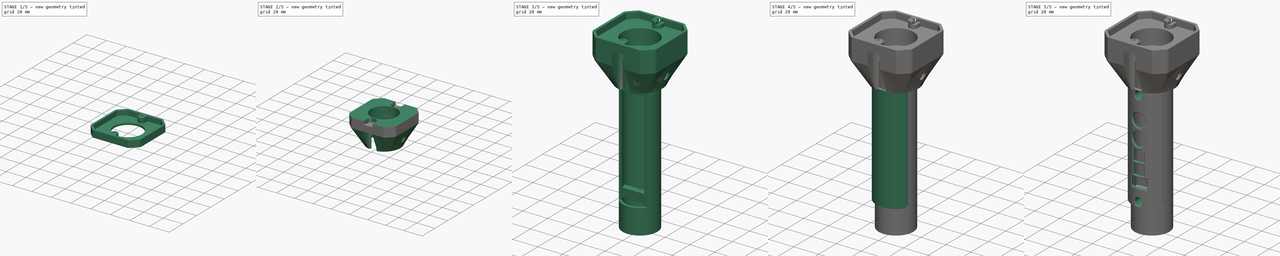
[diagram: build sequence overview — one tinted view per stage of 5, left to right]
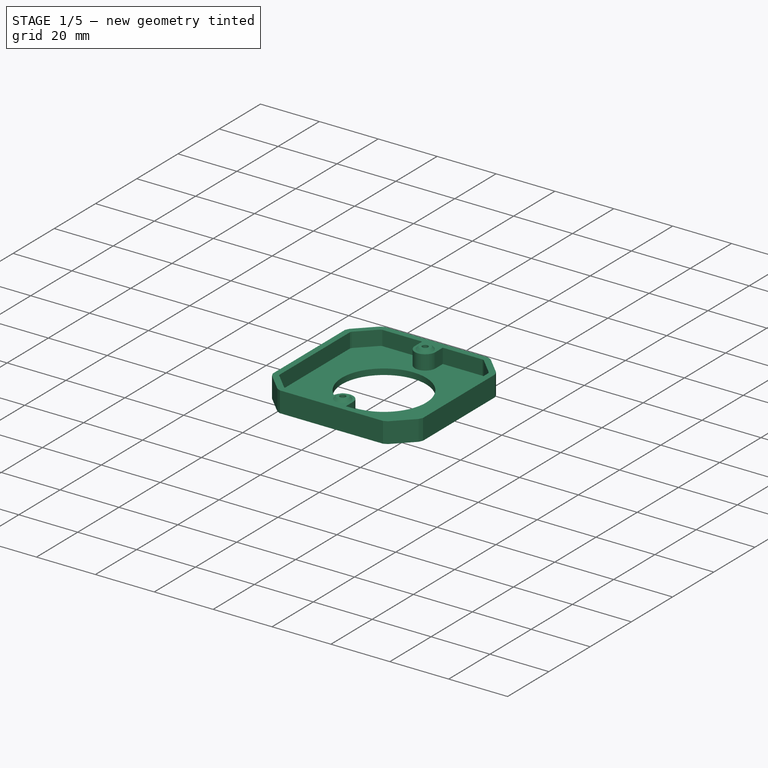
[diagram: stage 1 of 5 — iso view after this stage's code; geometry added in this stage tinted green]
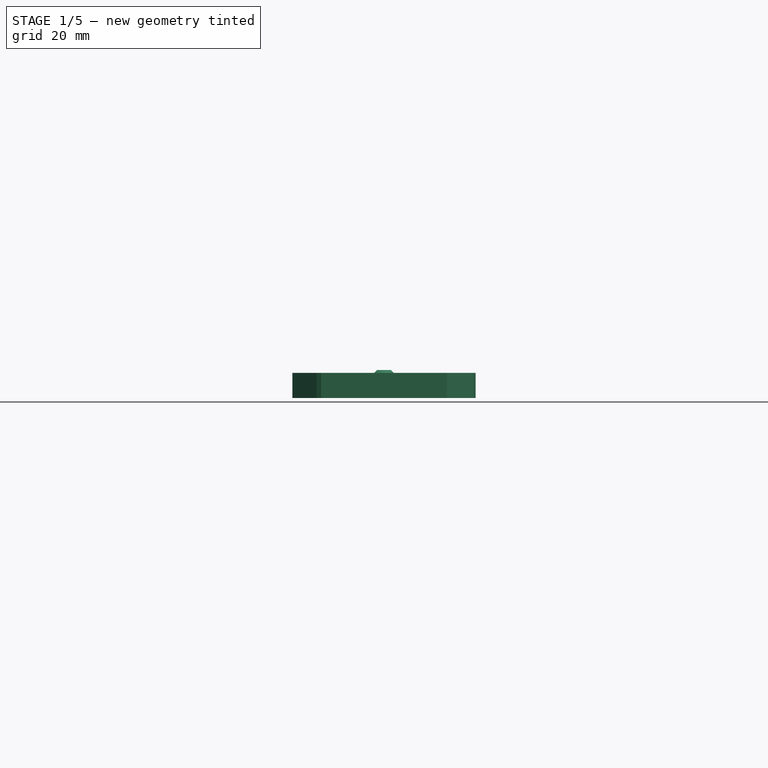
[diagram: stage 1 of 5 — front view after this stage's code; geometry added in this stage tinted green]
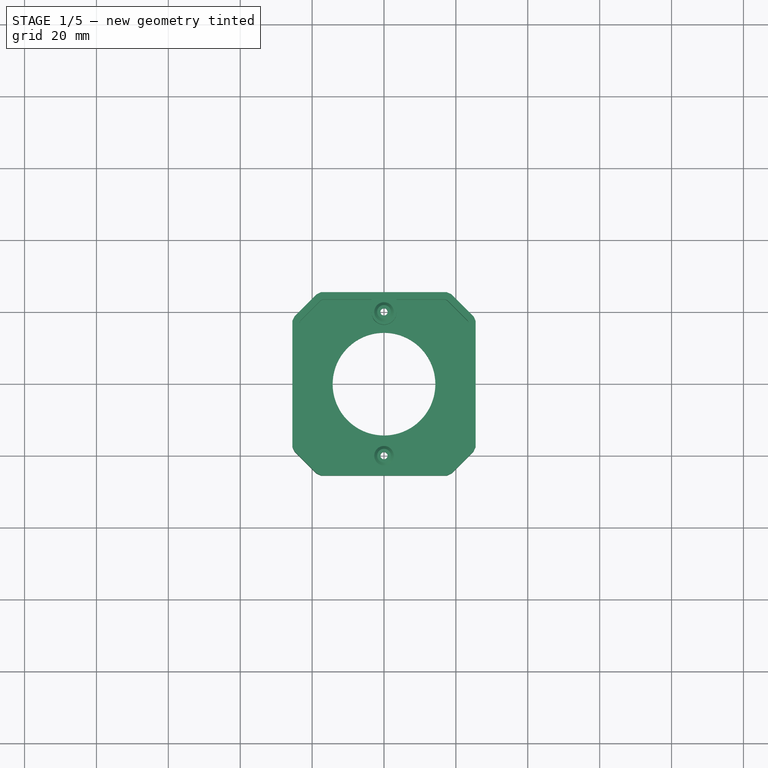
[diagram: stage 1 of 5 — top view after this stage's code; geometry added in this stage tinted green]
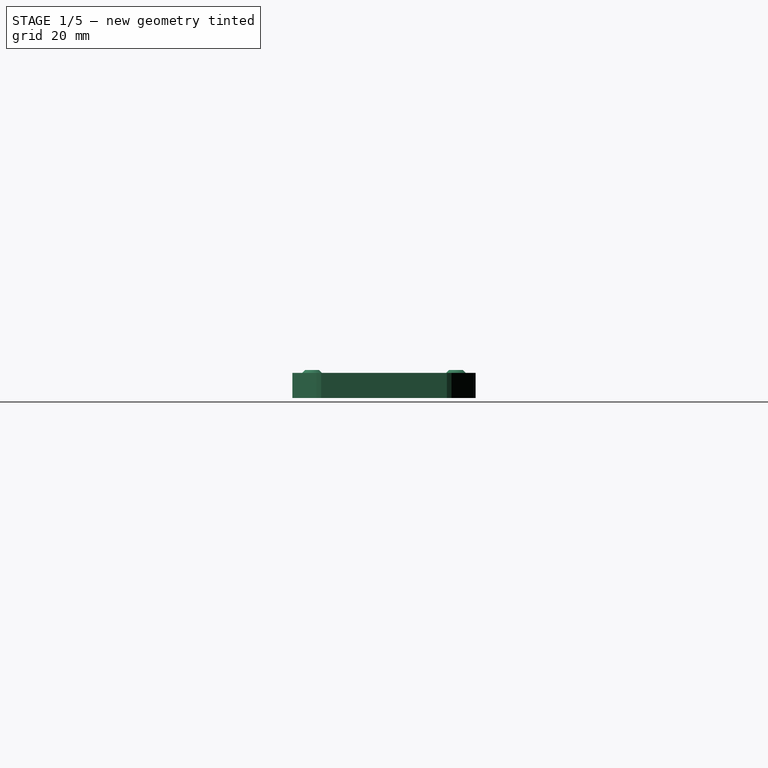
[diagram: stage 1 of 5 — right view after this stage's code; geometry added in this stage tinted green]
FCSTD DOCUMENT  (FreeCAD 0.21R33771 (Git))
Label: Vindicator
License: All rights reserved
LicenseURL: http://en.wikipedia.org/wiki/All_rights_reserved
objects: Sketcher::SketchObject×28, PartDesign::Pocket×21, PartDesign::Pad×9, PartDesign::Body×5, PartDesign::Chamfer×2, PartDesign::AdditiveLoft×1, PartDesign::Thickness×1, PartDesign::Boolean×1
note: 102 computed .brp shape members not serialized (recipe doc carries the construction recipe); baked Part::Feature solids carry a one-line shape summary decoded from their .brp

FEATURE [PartDesign::Body] Body002  label="TrackerMountLower"
  Group = -> [Sketch015,Sketch016,AdditiveLoft,Pad005,Sketch017,Pocket013,Sketch018,Pocket014,Sketch019,Pocket015,Sketch020,Pocket016,Sketch021,Pocket017]
  Origin = -> Origin002
  Placement = pos=(0,0,20.15) rot=(0,0,1;0rad)
  Tip = -> Pocket017
FEATURE [Sketcher::SketchObject] Sketch022
  FullyConstrained = true
  MapMode = 5
  Support = -> [XY_Plane003]
  sketch-geometry (16):
    g0: LineSegment StartX=-25.5 StartY=17.5 StartZ=0 EndX=-24.901 EndY=18.7845 EndZ=0
    g1: LineSegment StartX=-24.901 StartY=18.7845 StartZ=0 EndX=-18.7845 EndY=24.901 EndZ=0
    g2: LineSegment StartX=-18.7845 StartY=24.901 StartZ=0 EndX=-17.5 EndY=25.5 EndZ=0
    g3: LineSegment StartX=-17.5 StartY=25.5 StartZ=0 EndX=17.5 EndY=25.5 EndZ=0
    g4: LineSegment StartX=25.5 StartY=17.5 StartZ=0 EndX=25.5 EndY=-17.5 EndZ=0
    g5: LineSegment StartX=17.5 StartY=-25.5 StartZ=0 EndX=-17.5 EndY=-25.5 EndZ=0
    g6: LineSegment StartX=-25.5 StartY=-17.5 StartZ=0 EndX=-25.5 EndY=17.5 EndZ=0
    g7: LineSegment StartX=-25.5 StartY=-17.5 StartZ=0 EndX=-24.901 EndY=-18.7845 EndZ=0
    g8: LineSegment StartX=-24.901 StartY=-18.7845 StartZ=0 EndX=-18.7845 EndY=-24.901 EndZ=0
    g9: LineSegment StartX=-18.7845 StartY=-24.901 StartZ=0 EndX=-17.5 EndY=-25.5 EndZ=0
    g10: LineSegment StartX=17.5 StartY=-25.5 StartZ=0 EndX=18.7845 EndY=-24.901 EndZ=0
    g11: LineSegment StartX=18.7845 StartY=-24.901 StartZ=0 EndX=24.901 EndY=-18.7845 EndZ=0
    g12: LineSegment StartX=24.901 StartY=-18.7845 StartZ=0 EndX=25.5 EndY=-17.5 EndZ=0
    g13: LineSegment StartX=25.5 StartY=17.5 StartZ=0 EndX=24.901 EndY=18.7845 EndZ=0
    g14: LineSegment StartX=24.901 StartY=18.7845 StartZ=0 EndX=18.7845 EndY=24.901 EndZ=0
    g15: LineSegment StartX=18.7845 StartY=24.901 StartZ=0 EndX=17.5 EndY=25.5 EndZ=0
  constraints (40):
    c: Coincident(g1,g2)
    c: Coincident(g2,g3)
    c: Horizontal(g5)
    c: Coincident(g6,g0)
    c: Vertical(g6)
    c: DistanceX(g3,g3) = 35
    c: Equal(g5,g3)
    c: Equal(g6,g4)
    c: Symmetric(g0,g4,g-2)
    c: Symmetric(g2,g5,g-1)
    c: Symmetric(g3,g2,g-2)
    c: DistanceY(g5,g2) = 51
    c: DistanceX(g0,g4) = 51
    c: DistanceY(g4,g4) = 35
    c: Symmetric(g4,g4,g-1)
    c: Distance(g1) = 8.65
    c: Coincident(g6,g7)
    c: Coincident(g7,g8)
    c: Coincident(g8,g9)
    c: Coincident(g9,g5)
    c: Coincident(g5,g10)
    c: Coincident(g10,g11)
    c: Coincident(g11,g12)
    c: Coincident(g12,g4)
    c: Coincident(g4,g13)
    c: Coincident(g13,g14)
    c: Coincident(g14,g15)
    c: Coincident(g15,g3)
    c: Equal(g1,g14)
    c: Equal(g11,g8)
    c: Angle(g2) = 0.436332
    c: Angle(g0) = 1.13446
    c: Equal(g0,g2)
    c: Symmetric(g1,g14,g-2)
    c: Symmetric(g1,g8,g-1)
    c: Symmetric(g14,g10,g-1)
    c: Symmetric(g11,g13,g-1)
    c: Coincident(g1,g0)
    c: Equal(g9,g7)
    c: Equal(g12,g10)
FEATURE [PartDesign::Pad] Pad006
  Direction = (0,0,1)
  Length = 7
  Length2 = 10
  Profile = -> Sketch022
  ReferenceAxis = -> Sketch022 [N_Axis]
  Type = 0
FEATURE [PartDesign::Thickness] Thickness
  Base = -> Pad006 [Face18]
  BaseFeature = -> Pad006
  Intersection = false
  Join = 1
  Mode = 0
  Reversed = true
  SupportTransform = false
  Value = 2
FEATURE [Sketcher::SketchObject] Sketch023
  FullyConstrained = true
  MapMode = 5
  Placement = pos=(0,0,0) rot=(1,0,0;3.14159rad)
  Support = -> [Thickness]
  sketch-geometry (3):
    g0: Circle CenterX=0 CenterY=0 CenterZ=0 NormalX=0 NormalY=0 NormalZ=1 AngleXU=0 Radius=14.2875
    g1: Circle CenterX=0 CenterY=20 CenterZ=0 NormalX=0 NormalY=0 NormalZ=1 AngleXU=0 Radius=1
    g2: Circle CenterX=0 CenterY=-20 CenterZ=0 NormalX=0 NormalY=0 NormalZ=1 AngleXU=0 Radius=1
  constraints (7):
    c: Coincident(g0,g-1)
    c: PointOnObject(g1,g-2)
    c: Diameter(g0) = 28.575
    c: Equal(g1,g2)
    c: Diameter(g1) = 2
    c: Symmetric(g2,g1,g-1)
    c: DistanceY(g0,g1) = 20
FEATURE [Sketcher::SketchObject] Sketch024
  ExternalGeometry = -> [Thickness]
  FullyConstrained = true
  MapMode = 5
  Placement = pos=(0,0,2) rot=(0,0,1;0rad)
  Support = -> [Thickness]
  sketch-geometry (10):
    g0: Circle CenterX=0 CenterY=20 CenterZ=0 NormalX=0 NormalY=0 NormalZ=1 AngleXU=0 Radius=3.5
    g1: Circle CenterX=0 CenterY=-20 CenterZ=0 NormalX=0 NormalY=0 NormalZ=1 AngleXU=0 Radius=3.5
    g2: LineSegment StartX=-3.5 StartY=23.5 StartZ=0 EndX=-3.5 EndY=20 EndZ=0
    g3: LineSegment StartX=3.5 StartY=23.5 StartZ=0 EndX=3.5 EndY=20 EndZ=0
    g4: LineSegment StartX=-3.5 StartY=-20 StartZ=0 EndX=-3.5 EndY=-23.5 EndZ=0
    g5: LineSegment StartX=3.5 StartY=-20 StartZ=0 EndX=3.5 EndY=-23.5 EndZ=0
    g6: ArcOfCircle CenterX=-2e-16 CenterY=-20 CenterZ=0 NormalX=0 NormalY=0 NormalZ=1 AngleXU=0 Radius=3.5 StartAngle=0 EndAngle=3.14159
    g7: ArcOfCircle CenterX=0 CenterY=20 CenterZ=0 NormalX=0 NormalY=0 NormalZ=1 AngleXU=0 Radius=3.5 StartAngle=3.14159 EndAngle=6.28319
    g8: LineSegment StartX=-3.5 StartY=-23.5 StartZ=0 EndX=3.5 EndY=-23.5 EndZ=0
    g9: LineSegment StartX=-3.5 StartY=23.5 StartZ=0 EndX=3.5 EndY=23.5 EndZ=0
  constraints (27):
    c: PointOnObject(g0,g-2)
    c: Symmetric(g0,g1,g-1)
    c: Equal(g0,g1)
    c: DistanceY(g-1,g0) = 20
    c: PointOnObject(g2,g-3)
    c: PointOnObject(g3,g-3)
    c: PointOnObject(g4,g-4)
    c: PointOnObject(g5,g-4)
    c: Vertical(g5)
    c: Tangent(g2,g0) = -1.5708
    c: Tangent(g3,g0) = 1.5708
    c: Tangent(g4,g1) = -1.5708
    c: Tangent(g5,g1) = 1.5708
    c: Vertical(g4)
    c: Vertical(g2)
    c: Vertical(g3)
    c: Coincident(g6,g4)
    c: Coincident(g6,g5)
    c: Coincident(g7,g2)
    c: Coincident(g7,g3)
    c: Horizontal(g7,g3)
    c: Horizontal(g6,g5)
    c: Coincident(g8,g4)
    c: Coincident(g8,g5)
    c: Tangent(g8,g1)
    c: Coincident(g9,g2)
    c: Coincident(g9,g3)
FEATURE [PartDesign::Pad] Pad007
  BaseFeature = -> Thickness
  Direction = (0,0,1)
  Length = 5
  Length2 = 10
  Profile = -> Sketch024
  ReferenceAxis = -> Sketch024 [N_Axis]
  Type = 3
  UpToFace = -> Thickness [Face18]
FEATURE [PartDesign::Pocket] Pocket018
  BaseFeature = -> Pad007
  Direction = (0,0,1)
  Length = 5
  Length2 = 5
  Profile = -> Sketch023
  ReferenceAxis = -> Sketch023 [N_Axis]
  Type = 1
FEATURE [Sketcher::SketchObject] Sketch025
  FullyConstrained = true
  MapMode = 5
  Placement = pos=(0,0,0) rot=(1,0,0;3.14159rad)
  Support = -> [Pocket018]
  sketch-geometry (2):
    g0: Circle CenterX=0 CenterY=20 CenterZ=0 NormalX=0 NormalY=0 NormalZ=1 AngleXU=0 Radius=1.9685
    g1: Circle CenterX=0 CenterY=-20 CenterZ=0 NormalX=0 NormalY=0 NormalZ=1 AngleXU=0 Radius=1.9685
  constraints (5):
    c: PointOnObject(g0,g-2)
    c: Symmetric(g1,g0,g-1)
    c: Equal(g0,g1)
    c: Diameter(g0) = 3.937
    c: DistanceY(g0) = 20
FEATURE [PartDesign::Pocket] Pocket019
  BaseFeature = -> Pocket018
  Direction = (0,0,1)
  Length = 4.2
  Length2 = 5
  Profile = -> Sketch025
  ReferenceAxis = -> Sketch025 [N_Axis]
  Type = 0
FEATURE [Sketcher::SketchObject] Sketch026
  FullyConstrained = true
  MapMode = 5
  Placement = pos=(0,0,7) rot=(0,0,1;0rad)
  Support = -> [Pocket019]
  sketch-geometry (4):
    g0: Circle CenterX=0 CenterY=-20 CenterZ=0 NormalX=0 NormalY=0 NormalZ=1 AngleXU=0 Radius=1.905
    g1: Circle CenterX=0 CenterY=20 CenterZ=0 NormalX=0 NormalY=0 NormalZ=1 AngleXU=0 Radius=1.905
    g2: Circle CenterX=0 CenterY=-20 CenterZ=0 NormalX=0 NormalY=0 NormalZ=1 AngleXU=0 Radius=1
    g3: Circle CenterX=0 CenterY=20 CenterZ=0 NormalX=0 NormalY=0 NormalZ=1 AngleXU=0 Radius=1
  constraints (9):
    c: PointOnObject(g0,g-2)
    c: Symmetric(g1,g0,g-1)
    c: DistanceY(g-1,g1) = 20
    c: Diameter(g1) = 3.81
    c: Coincident(g2,g0)
    c: Coincident(g3,g1)
    c: Diameter(g3) = 2
    c: Equal(g3,g2)
    c: Equal(g1,g0)
FEATURE [PartDesign::Pad] Pad008
  BaseFeature = -> Pocket019
  Direction = (0,0,1)
  Length = 0.8
  Length2 = 10
  Profile = -> Sketch026
  ReferenceAxis = -> Sketch026 [N_Axis]
  Type = 0
FEATURE [PartDesign::Chamfer] Chamfer001
  Angle = 45
  Base = -> Pad008 [Edge97,Edge120]
  BaseFeature = -> Pad008
  ChamferType = 0
  FlipDirection = false
  Size = 0.7999
  Size2 = 1
  SupportTransform = false
  UseAllEdges = false
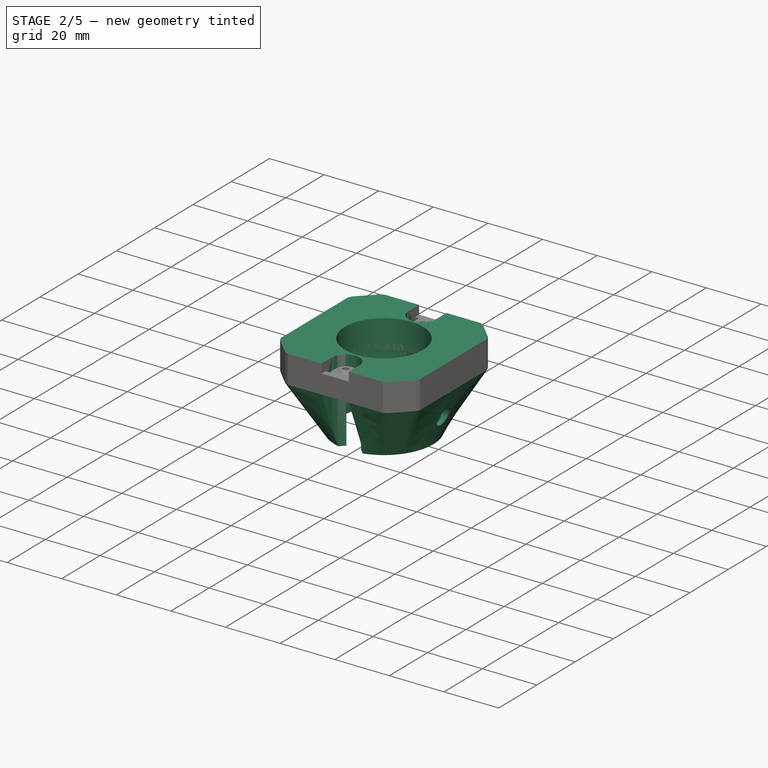
[diagram: stage 2 of 5 — iso view after this stage's code; geometry added in this stage tinted green]
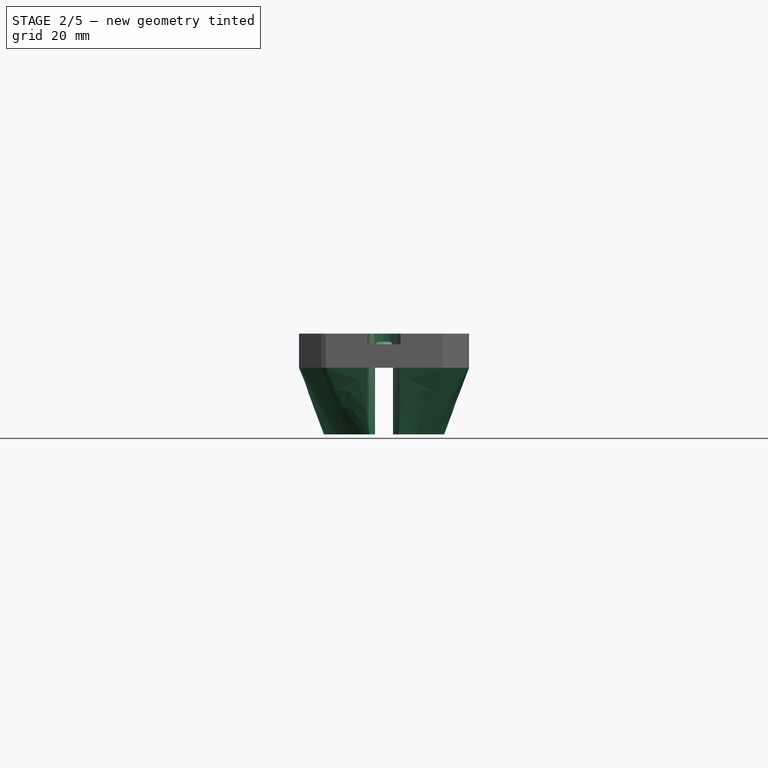
[diagram: stage 2 of 5 — front view after this stage's code; geometry added in this stage tinted green]
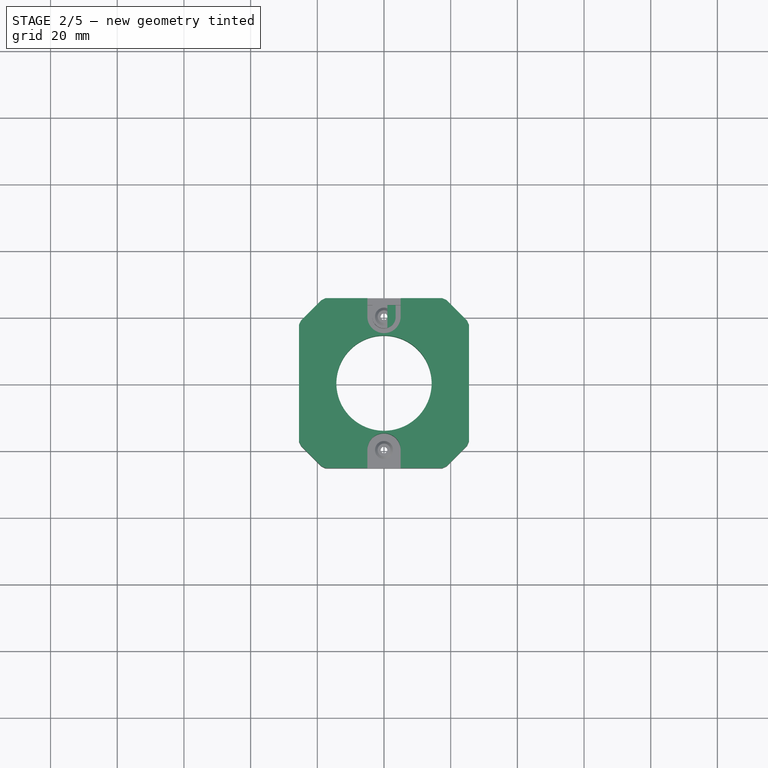
[diagram: stage 2 of 5 — top view after this stage's code; geometry added in this stage tinted green]
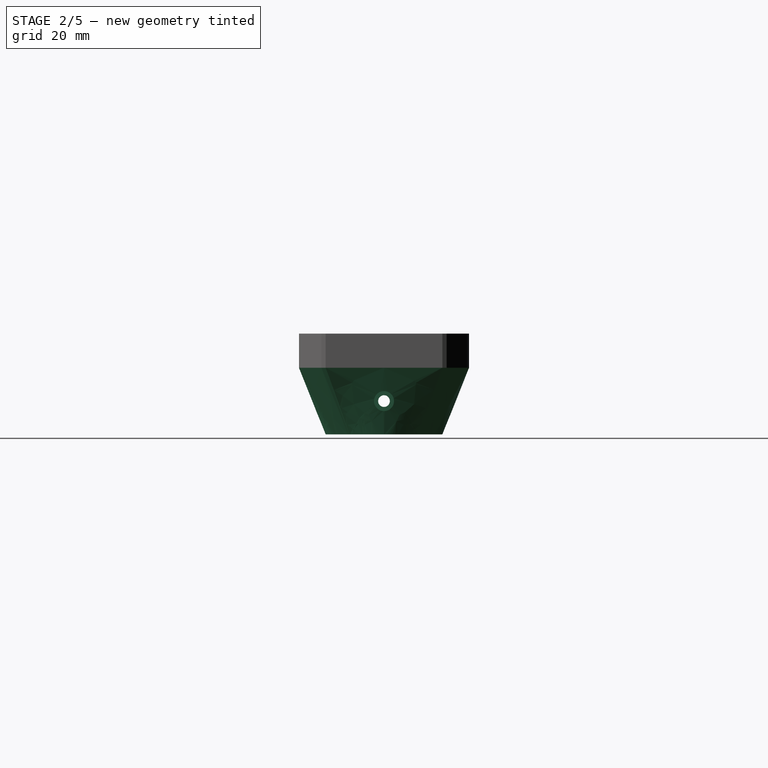
[diagram: stage 2 of 5 — right view after this stage's code; geometry added in this stage tinted green]
FEATURE [PartDesign::Body] Body001  label="Core"
  Group = -> [Sketch005,Pad001,Sketch006,Pocket006,Sketch007,Pad002,Pad003,Sketch008,Pocket007,Sketch009,Pocket008,Sketch010,Pocket009,Sketch011,Pad004,Sketch012,Pocket010,Sketch013,Pocket011,Sketch014,Pocket012]
  Origin = -> Origin001
  Tip = -> Pocket012
FEATURE [Sketcher::SketchObject] Sketch015
  FullyConstrained = true
  MapMode = 5
  Support = -> [XY_Plane002]
  sketch-geometry (16):
    g0: LineSegment StartX=-25.5 StartY=-17.5 StartZ=0 EndX=-25.5 EndY=17.5 EndZ=0
    g1: LineSegment StartX=-25.5 StartY=17.5 StartZ=0 EndX=-24.901 EndY=18.7845 EndZ=0
    g2: LineSegment StartX=-17.5 StartY=25.5 StartZ=0 EndX=17.5 EndY=25.5 EndZ=0
    g3: LineSegment StartX=24.901 StartY=18.7845 StartZ=0 EndX=25.5 EndY=17.5 EndZ=0
    g4: LineSegment StartX=25.5 StartY=17.5 StartZ=0 EndX=25.5 EndY=-17.5 EndZ=0
    g5: LineSegment StartX=25.5 StartY=-17.5 StartZ=0 EndX=24.901 EndY=-18.7845 EndZ=0
    g6: LineSegment StartX=17.5 StartY=-25.5 StartZ=0 EndX=-17.5 EndY=-25.5 EndZ=0
    g7: LineSegment StartX=-24.901 StartY=-18.7845 StartZ=0 EndX=-25.5 EndY=-17.5 EndZ=0
    g8: LineSegment StartX=-24.901 StartY=18.7845 StartZ=0 EndX=-18.7845 EndY=24.901 EndZ=0
    g9: LineSegment StartX=-18.7845 StartY=24.901 StartZ=0 EndX=-17.5 EndY=25.5 EndZ=0
    g10: LineSegment StartX=17.5 StartY=25.5 StartZ=0 EndX=18.7845 EndY=24.901 EndZ=0
    g11: LineSegment StartX=18.7845 StartY=24.901 StartZ=0 EndX=24.901 EndY=18.7845 EndZ=0
    g12: LineSegment StartX=24.901 StartY=-18.7845 StartZ=0 EndX=18.7845 EndY=-24.901 EndZ=0
    g13: LineSegment StartX=18.7845 StartY=-24.901 StartZ=0 EndX=17.5 EndY=-25.5 EndZ=0
    g14: LineSegment StartX=-17.5 StartY=-25.5 StartZ=0 EndX=-18.7845 EndY=-24.901 EndZ=0
    g15: LineSegment StartX=-18.7845 StartY=-24.901 StartZ=0 EndX=-24.901 EndY=-18.7845 EndZ=0
  constraints (37):
    c: Vertical(g0)
    c: Coincident(g0,g1)
    c: Coincident(g3,g4)
    c: Coincident(g4,g5)
    c: Coincident(g7,g0)
    c: DistanceX(g0,g3) = 51
    c: DistanceY(g6,g2) = 51
    c: DistanceX(g2,g2) = 35
    c: DistanceY(g0,g0) = 35
    c: Equal(g4,g0)
    c: Symmetric(g2,g2,g-2)
    c: Symmetric(g0,g3,g-2)
    c: Symmetric(g6,g6,g-2)
    c: Symmetric(g7,g5,g-2)
    c: Symmetric(g1,g3,g-2)
    c: Symmetric(g2,g6,g-1)
    c: Symmetric(g4,g3,g-1)
    c: Symmetric(g1,g7,g-1)
    c: Coincident(g8,g1)
    c: Coincident(g9,g8)
    c: Coincident(g9,g2)
    c: Coincident(g10,g2)
    c: Coincident(g11,g10)
    c: Coincident(g11,g3)
    c: Coincident(g12,g5)
    c: Coincident(g13,g12)
    c: Coincident(g13,g6)
    c: Coincident(g14,g6)
    c: Coincident(g15,g14)
    c: Coincident(g15,g7)
    c: Symmetric(g8,g10,g-2)
    c: Symmetric(g8,g14,g-1)
    c: Symmetric(g10,g12,g-1)
    c: Distance(g8) = 8.65
    c: Equal(g9,g1)
    c: Angle(g9) = 0.436332
    c: Angle(g1) = 1.13446
FEATURE [Sketcher::SketchObject] Sketch016
  AttachmentOffset = pos=(0,0,-20) rot=(0,0,1;0rad)
  FullyConstrained = true
  MapMode = 5
  Placement = pos=(0,0,-20) rot=(0,0,1;0rad)
  Support = -> [XY_Plane002]
  sketch-geometry (1):
    g0: Circle CenterX=0 CenterY=0 CenterZ=0 NormalX=0 NormalY=0 NormalZ=1 AngleXU=0 Radius=18.025
  constraints (2):
    c: Diameter(g0) = 36.05
    c: Coincident(g0,g-1)
FEATURE [PartDesign::AdditiveLoft] AdditiveLoft
  Closed = false
  Profile = -> Sketch015
  Ruled = false
  Sections = -> [Sketch016]
FEATURE [PartDesign::Pad] Pad005
  BaseFeature = -> AdditiveLoft
  Direction = (0,0,1)
  Length = 10.25
  Length2 = 10
  Profile = -> AdditiveLoft [Face1]
  Type = 0
FEATURE [Sketcher::SketchObject] Sketch017
  FullyConstrained = true
  MapMode = 5
  Placement = pos=(0,0,-20) rot=(1,0,0;3.14159rad)
  Support = -> [Pad005]
  sketch-geometry (1):
    g0: Circle CenterX=0 CenterY=0 CenterZ=0 NormalX=0 NormalY=0 NormalZ=1 AngleXU=0 Radius=16.025
  constraints (2):
    c: Coincident(g0,g-1)
    c: Diameter(g0) = 32.05
FEATURE [PartDesign::Pocket] Pocket013
  BaseFeature = -> Pad005
  Direction = (0,0,1)
  Length = 20
  Length2 = 5
  Profile = -> Sketch017
  ReferenceAxis = -> Sketch017 [N_Axis]
  Type = 0
FEATURE [Sketcher::SketchObject] Sketch018
  ExternalGeometry = -> [Pocket013]
  FullyConstrained = true
  MapMode = 5
  Placement = pos=(0,0,10.25) rot=(0,0,1;0rad)
  Support = -> [Pocket013]
  sketch-geometry (11):
    g0: Circle CenterX=0 CenterY=0 CenterZ=0 NormalX=0 NormalY=0 NormalZ=1 AngleXU=0 Radius=14.2875
    g1: LineSegment StartX=-5 StartY=25.5 StartZ=0 EndX=5 EndY=25.5 EndZ=0
    g2: Circle CenterX=0 CenterY=20 CenterZ=0 NormalX=0 NormalY=0 NormalZ=1 AngleXU=0 Radius=5
    g3: Circle CenterX=0 CenterY=-20 CenterZ=0 NormalX=0 NormalY=0 NormalZ=1 AngleXU=0 Radius=5
    g4: LineSegment StartX=-5 StartY=25.5 StartZ=0 EndX=-5 EndY=20 EndZ=0
    g5: LineSegment StartX=5 StartY=25.5 StartZ=0 EndX=5 EndY=20 EndZ=0
    g6: LineSegment StartX=5 StartY=-20 StartZ=0 EndX=5 EndY=-25.5 EndZ=0
    g7: LineSegment StartX=-5 StartY=-20 StartZ=0 EndX=-5 EndY=-25.5 EndZ=0
    g8: LineSegment StartX=-5 StartY=-25.5 StartZ=0 EndX=5 EndY=-25.5 EndZ=0
    g9: ArcOfCircle CenterX=0 CenterY=-20 CenterZ=0 NormalX=0 NormalY=0 NormalZ=1 AngleXU=0 Radius=5 StartAngle=0 EndAngle=3.14159
    g10: ArcOfCircle CenterX=1.499e-13 CenterY=20 CenterZ=0 NormalX=0 NormalY=0 NormalZ=1 AngleXU=0 Radius=5 StartAngle=3.14159 EndAngle=6.28319
  constraints (29):
    c: Coincident(g0,g-1)
    c: Diameter(g0) = 28.575
    c: PointOnObject(g2,g-2)
    c: Diameter(g2) = 10
    c: DistanceY(g0,g2) = 20
    c: Equal(g3,g2)
    c: Symmetric(g2,g3,g-1)
    c: Coincident(g4,g1)
    c: Coincident(g5,g1)
    c: PointOnObject(g6,g-4)
    c: PointOnObject(g7,g-4)
    c: Coincident(g8,g7)
    c: Coincident(g8,g6)
    c: Vertical(g6)
    c: Vertical(g5)
    c: Vertical(g4)
    c: Vertical(g7)
    c: Tangent(g5,g2) = 1.5708
    c: Tangent(g4,g2) = -1.5708
    c: Tangent(g7,g3) = -1.5708
    c: Tangent(g6,g3) = 1.5708
    c: PointOnObject(g1,g-3)
    c: PointOnObject(g1,g-3)
    c: Coincident(g9,g7)
    c: Coincident(g9,g6)
    c: Coincident(g10,g4)
    c: Coincident(g10,g5)
    c: Horizontal(g10,g5)
    c: Horizontal(g9,g6)
FEATURE [PartDesign::Pocket] Pocket014
  BaseFeature = -> Pocket013
  Direction = (0,0,-1)
  Length = 5
  Length2 = 5
  Profile = -> Sketch018
  ReferenceAxis = -> Sketch018 [N_Axis]
  Type = 1
FEATURE [Sketcher::SketchObject] Sketch019
  ExternalGeometry = -> [Pocket014]
  FullyConstrained = true
  MapMode = 5
  Placement = pos=(0,0,0) rot=(0.57735,0.57735,0.57735;2.0944rad)
  Support = -> [YZ_Plane002]
  sketch-geometry (1):
    g0: Circle CenterX=0 CenterY=-10 CenterZ=0 NormalX=0 NormalY=0 NormalZ=1 AngleXU=0 Radius=1.75
  constraints (3):
    c: PointOnObject(g0,g-2)
    c: Diameter(g0) = 3.5
    c: Distance(g0,g-3) = 10
FEATURE [PartDesign::Pocket] Pocket015
  BaseFeature = -> Pocket014
  Direction = (-1,2e-16,-3e-16)
  Length = 5
  Length2 = 5
  Midplane = true
  Profile = -> Sketch019
  ReferenceAxis = -> Sketch019 [N_Axis]
  Type = 1
FEATURE [Sketcher::SketchObject] Sketch020
  AttachmentOffset = pos=(0,0,19.025) rot=(0,0,1;0rad)
  ExternalGeometry = -> [Pocket015]
  FullyConstrained = true
  MapMode = 5
  Placement = pos=(19.025,-4.2e-15,4.2e-15) rot=(0.57735,0.57735,0.57735;2.0944rad)
  Support = -> [YZ_Plane002]
  sketch-geometry (1):
    g0: Circle CenterX=0 CenterY=-10 CenterZ=0 NormalX=0 NormalY=0 NormalZ=1 AngleXU=0 Radius=3
  constraints (3):
    c: PointOnObject(g0,g-2)
    c: Diameter(g0) = 6
    c: Distance(g0,g-3) = 10
FEATURE [PartDesign::Pocket] Pocket016
  BaseFeature = -> Pocket015
  Direction = (-1,2e-16,-3e-16)
  Length = 5
  Length2 = 5
  Profile = -> Sketch020
  ReferenceAxis = -> Sketch020 [N_Axis]
  Reversed = true
  Type = 1
FEATURE [Sketcher::SketchObject] Sketch027
  ExternalGeometry = -> [Chamfer001]
  FullyConstrained = true
  MapMode = 5
  Placement = pos=(0,0,7.8) rot=(0,0,1;0rad)
  Support = -> [Chamfer001]
  sketch-geometry (4):
    g0: LineSegment StartX=1 StartY=23.5 StartZ=0 EndX=3.5 EndY=23.5 EndZ=0
    g1: LineSegment StartX=3.5 StartY=23.5 StartZ=0 EndX=3.5 EndY=16.5 EndZ=0
    g2: LineSegment StartX=3.5 StartY=16.5 StartZ=0 EndX=1 EndY=16.5 EndZ=0
    g3: LineSegment StartX=1 StartY=16.5 StartZ=0 EndX=1 EndY=23.5 EndZ=0
  constraints (12):
    c: Coincident(g0,g1)
    c: Coincident(g1,g2)
    c: Coincident(g2,g3)
    c: Coincident(g3,g0)
    c: Horizontal(g0)
    c: Horizontal(g2)
    c: Vertical(g1)
    c: Vertical(g3)
    c: Tangent(g2,g-5)
    c: PointOnObject(g-7,g1)
    c: PointOnObject(g-7,g0)
    c: Tangent(g3,g-6)
FEATURE [PartDesign::Pocket] Pocket020
  BaseFeature = -> Chamfer001
  Direction = (0,0,-1)
  Length = 3
  Length2 = 5
  Profile = -> Sketch027
  ReferenceAxis = -> Sketch027 [N_Axis]
  Type = 0
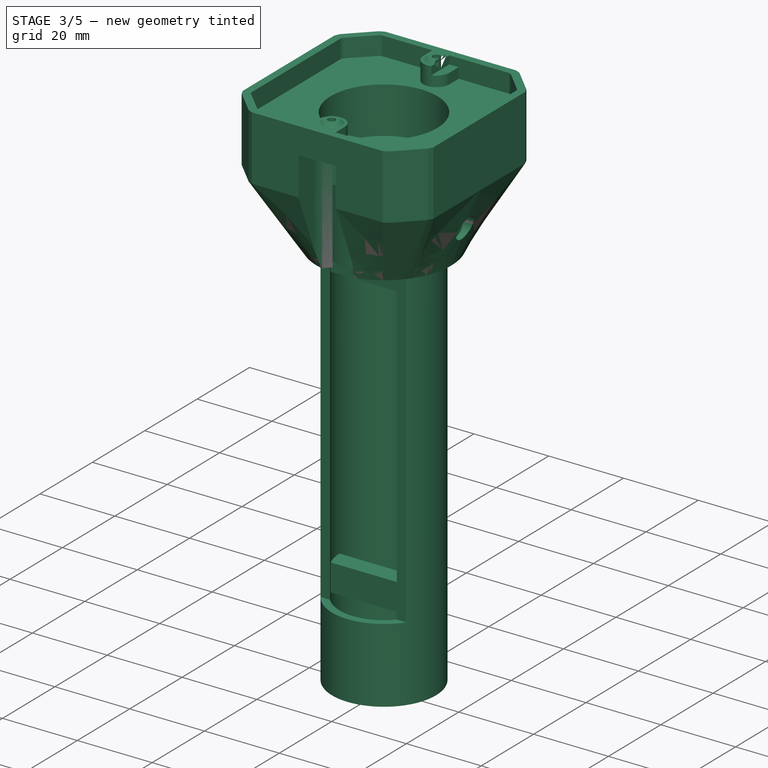
[diagram: stage 3 of 5 — iso view after this stage's code; geometry added in this stage tinted green]
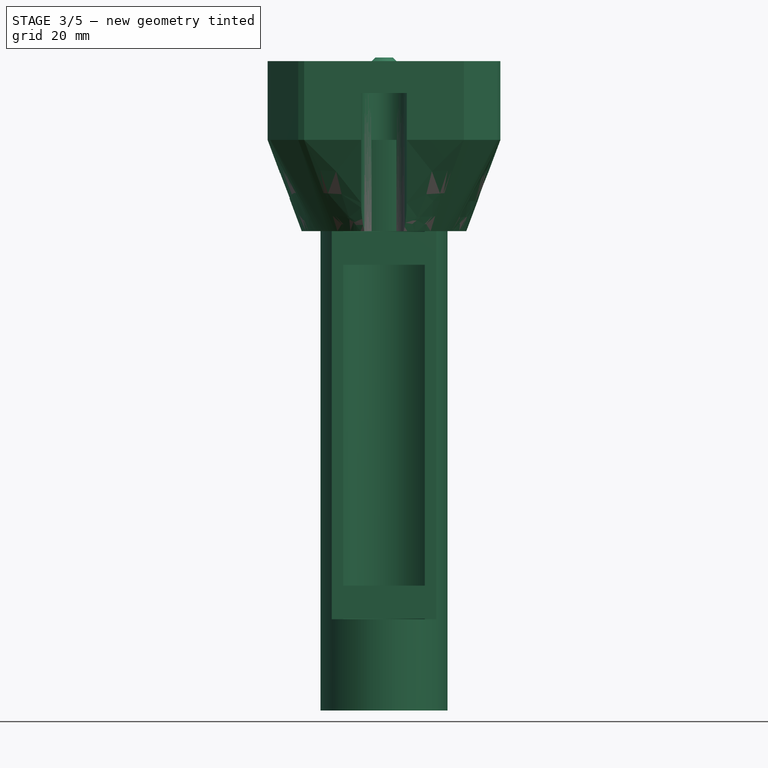
[diagram: stage 3 of 5 — front view after this stage's code; geometry added in this stage tinted green]
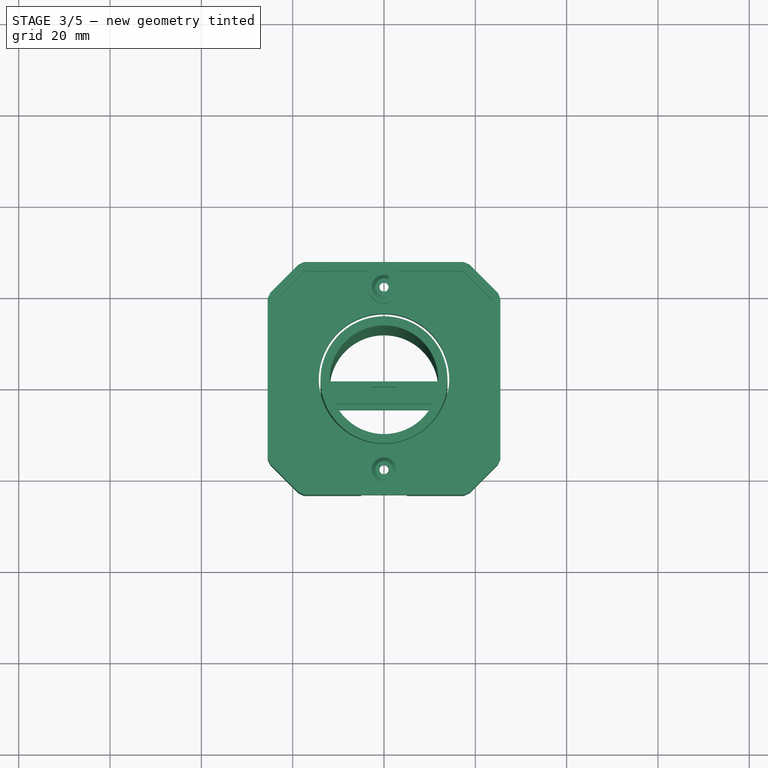
[diagram: stage 3 of 5 — top view after this stage's code; geometry added in this stage tinted green]
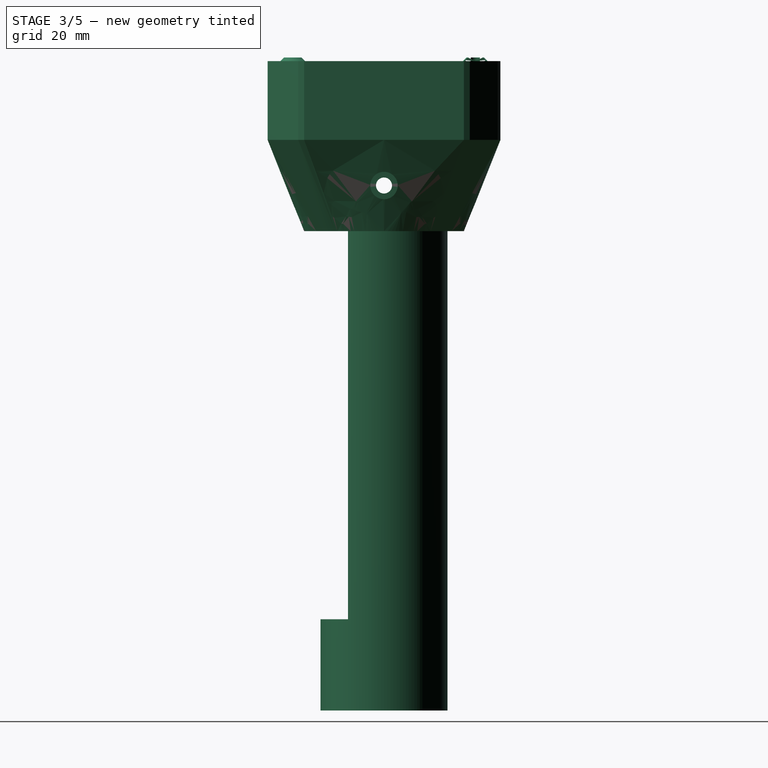
[diagram: stage 3 of 5 — right view after this stage's code; geometry added in this stage tinted green]
FEATURE [PartDesign::Body] Body  label="ButtonPanel"
  Group = -> [Sketch,Pad,Sketch001,Pocket,Sketch002,Pocket001,Sketch003,Pocket002,Sketch004,Pocket003,Pocket004,Pocket005,Chamfer]
  Origin = -> Origin
  Tip = -> Chamfer
FEATURE [Sketcher::SketchObject] Sketch005
  AttachmentOffset = pos=(0,0,20.15) rot=(0,0,1;0rad)
  FullyConstrained = true
  MapMode = 5
  Placement = pos=(0,0,20.15) rot=(0,0,1;0rad)
  Support = -> [XY_Plane001]
  sketch-geometry (2):
    g0: Circle CenterX=0 CenterY=0 CenterZ=0 NormalX=0 NormalY=0 NormalZ=1 AngleXU=0 Radius=13.9
    g1: Circle CenterX=0 CenterY=0 CenterZ=0 NormalX=0 NormalY=0 NormalZ=1 AngleXU=0 Radius=11.9
  constraints (4):
    c: Coincident(g0,g-1)
    c: Coincident(g1,g0)
    c: Diameter(g0) = 27.8
    c: Distance(g0,g1) = 2
FEATURE [PartDesign::Pad] Pad001
  Direction = (0,0,-1)
  Length = 125
  Length2 = 10
  Profile = -> Sketch005
  ReferenceAxis = -> Sketch005 [N_Axis]
  Type = 0
  UseCustomVector = true
FEATURE [Sketcher::SketchObject] Sketch006
  ExternalGeometry = -> [Pad001]
  FullyConstrained = true
  MapMode = 5
  Placement = pos=(0,0,0) rot=(0.57735,0.57735,0.57735;2.0944rad)
  Support = -> [YZ_Plane001]
  sketch-geometry (5):
    g0: LineSegment StartX=-7.875 StartY=0.15 StartZ=0 EndX=-15.875 EndY=0.15 EndZ=0
    g1: LineSegment StartX=-15.875 StartY=0.15 StartZ=0 EndX=-15.875 EndY=-84.85 EndZ=0
    g2: LineSegment StartX=-15.875 StartY=-84.85 StartZ=0 EndX=-7.875 EndY=-84.85 EndZ=0
    g3: LineSegment StartX=-7.875 StartY=-84.85 StartZ=0 EndX=-7.875 EndY=0.15 EndZ=0
    g4: Circle CenterX=0 CenterY=10.15 CenterZ=0 NormalX=0 NormalY=0 NormalZ=1 AngleXU=0 Radius=1.75
  constraints (15):
    c: Coincident(g0,g1)
    c: Coincident(g1,g2)
    c: Coincident(g2,g3)
    c: Coincident(g3,g0)
    c: Horizontal(g0)
    c: Horizontal(g2)
    c: Vertical(g1)
    c: Vertical(g3)
    c: PointOnObject(g4,g-2)
    c: DistanceY(g1,g1) = 85
    c: Diameter(g4) = 3.5
    c: DistanceY(g4,g-3) = 10
    c: DistanceX(g0,g0) = 8
    c: DistanceX(g0,g-1) = 7.875
    c: DistanceY(g0,g-3) = 20
FEATURE [PartDesign::Pocket] Pocket006
  BaseFeature = -> Pad001
  Direction = (-1,2e-16,-3e-16)
  Length = 5
  Length2 = 5
  Midplane = true
  Profile = -> Sketch006
  ReferenceAxis = -> Sketch006 [N_Axis]
  Type = 1
FEATURE [Sketcher::SketchObject] Sketch007
  ExternalGeometry = -> [Pocket006]
  FullyConstrained = true
  MapMode = 5
  Placement = pos=(0,0,0) rot=(0.57735,0.57735,0.57735;2.0944rad)
  Support = -> [YZ_Plane001]
  sketch-geometry (8):
    g0: LineSegment StartX=-4.875 StartY=-5.3e-15 StartZ=0 EndX=0 EndY=-5.3e-15 EndZ=0
    g1: LineSegment StartX=0 StartY=-5.3e-15 StartZ=0 EndX=0 EndY=-7.213 EndZ=0
    g2: LineSegment StartX=0 StartY=-7.213 StartZ=0 EndX=-4.875 EndY=-7.213 EndZ=0
    g3: LineSegment StartX=-4.875 StartY=-7.213 StartZ=0 EndX=-4.875 EndY=-5.3e-15 EndZ=0
    g4: LineSegment StartX=-4.875 StartY=-84.7 StartZ=0 EndX=0 EndY=-84.7 EndZ=0
    g5: LineSegment StartX=0 StartY=-84.7 StartZ=0 EndX=0 EndY=-77.487 EndZ=0
    g6: LineSegment StartX=0 StartY=-77.487 StartZ=0 EndX=-4.875 EndY=-77.487 EndZ=0
    g7: LineSegment StartX=-4.875 StartY=-77.487 StartZ=0 EndX=-4.875 EndY=-84.7 EndZ=0
  constraints (24):
    c: Coincident(g0,g1)
    c: Coincident(g1,g2)
    c: Coincident(g2,g3)
    c: Coincident(g3,g0)
    c: Horizontal(g0)
    c: Horizontal(g2)
    c: Vertical(g1)
    c: Vertical(g3)
    c: Coincident(g4,g5)
    c: Coincident(g5,g6)
    c: Coincident(g6,g7)
    c: Coincident(g7,g4)
    c: Horizontal(g4)
    c: Horizontal(g6)
    c: Vertical(g5)
    c: Vertical(g7)
    c: DistanceY(g0,g-3) = 20.15
    c: DistanceX(g0,g0) = 4.875
    c: DistanceX(g6,g6) = 4.875
    c: DistanceY(g5,g5) = 7.213
    c: DistanceY(g1,g1) = 7.213
    c: DistanceY(g-4,g4) = 20.15
    c: PointOnObject(g0,g-2)
    c: PointOnObject(g5,g-2)
FEATURE [PartDesign::Pad] Pad002
  BaseFeature = -> Pocket006
  Direction = (1,-2e-16,3e-16)
  Length = 13
  Length2 = 10
  Profile = -> Sketch007
  ReferenceAxis = -> Sketch007 [N_Axis]
  Type = 0
FEATURE [PartDesign::Pad] Pad003
  BaseFeature = -> Pad002
  Direction = (1,-2e-16,3e-16)
  Length = 13
  Length2 = 10
  Profile = -> Sketch007
  ReferenceAxis = -> Sketch007 [N_Axis]
  Reversed = true
  Type = 0
FEATURE [Sketcher::SketchObject] Sketch008
  ExternalGeometry = -> [Pad003]
  FullyConstrained = true
  MapMode = 5
  Placement = pos=(0,0,-5.3e-15) rot=(0,0,1;0rad)
  Support = -> [Pad003]
  sketch-geometry (5):
    g0: LineSegment StartX=2.75 StartY=-3.6875 StartZ=0 EndX=2.75 EndY=-1.1875 EndZ=0
    g1: LineSegment StartX=2.75 StartY=-1.1875 StartZ=0 EndX=-2.75 EndY=-1.1875 EndZ=0
    g2: LineSegment StartX=-2.75 StartY=-1.1875 StartZ=0 EndX=-2.75 EndY=-3.6875 EndZ=0
    g3: LineSegment StartX=-2.75 StartY=-3.6875 StartZ=0 EndX=2.75 EndY=-3.6875 EndZ=0
    g4: GeomPoint X=-5e-16 Y=-2.4375 Z=0
  constraints (12):
    c: Coincident(g0,g1)
    c: Coincident(g1,g2)
    c: Coincident(g2,g3)
    c: Coincident(g3,g0)
    c: Horizontal(g1)
    c: Horizontal(g3)
    c: Vertical(g0)
    c: Vertical(g2)
    c: Symmetric(g1,g0,g4)
    c: DistanceX(g1,g1) = 5.5
    c: DistanceY(g0,g0) = 2.5
    c: Symmetric(g-3,g-4,g4)
FEATURE [PartDesign::Pocket] Pocket007
  BaseFeature = -> Pad003
  Direction = (3e-16,-2e-16,-1)
  Length = 6.3565
  Length2 = 5
  Profile = -> Sketch008
  ReferenceAxis = -> Sketch008 [N_Axis]
  Type = 0
FEATURE [Sketcher::SketchObject] Sketch021
  AttachmentOffset = pos=(0,0,-19.02) rot=(0,0,1;0rad)
  ExternalGeometry = -> [Pocket016]
  FullyConstrained = true
  MapMode = 5
  Placement = pos=(-19.02,4.2e-15,-4.2e-15) rot=(0.57735,0.57735,0.57735;2.0944rad)
  Support = -> [YZ_Plane002]
  sketch-geometry (5):
    g0: LineSegment StartX=2.75 StartY=-7.25 StartZ=0 EndX=2.75 EndY=-12.75 EndZ=0
    g1: LineSegment StartX=2.75 StartY=-12.75 StartZ=0 EndX=-2.75 EndY=-12.75 EndZ=0
    g2: LineSegment StartX=-2.75 StartY=-12.75 StartZ=0 EndX=-2.75 EndY=-7.25 EndZ=0
    g3: LineSegment StartX=-2.75 StartY=-7.25 StartZ=0 EndX=2.75 EndY=-7.25 EndZ=0
    g4: GeomPoint X=0 Y=-10 Z=0
  constraints (13):
    c: Coincident(g0,g1)
    c: Coincident(g1,g2)
    c: Coincident(g2,g3)
    c: Coincident(g3,g0)
    c: Horizontal(g1)
    c: Horizontal(g3)
    c: Vertical(g0)
    c: Vertical(g2)
    c: Symmetric(g1,g0,g4)
    c: PointOnObject(g4,g-2)
    c: DistanceX(g3,g3) = 5.5
    c: DistanceY(g0,g0) = 5.5
    c: Distance(g4,g-3) = 10
FEATURE [PartDesign::Pocket] Pocket017
  BaseFeature = -> Pocket016
  Direction = (-1,2e-16,-3e-16)
  Length = 5
  Length2 = 5
  Profile = -> Sketch021
  ReferenceAxis = -> Sketch021 [N_Axis]
  Type = 1
FEATURE [PartDesign::Body] Body003  label="TrackerMountUpper"
  Group = -> [Sketch022,Pad006,Thickness,Sketch024,Pad007,Sketch023,Pocket018,Sketch025,Pocket019,Sketch026,Pad008,Chamfer001,Sketch027,Pocket020]
  Origin = -> Origin003
  Placement = pos=(0,0,30.4) rot=(0,0,1;0rad)
  Tip = -> Pocket020
FEATURE [PartDesign::Boolean] Boolean
  Group = -> [Body002,Body003]
  Type = 0
FEATURE [PartDesign::Body] Body004  label="TrackerMount"
  Group = -> [Boolean]
  Origin = -> Origin004
  Tip = -> Boolean
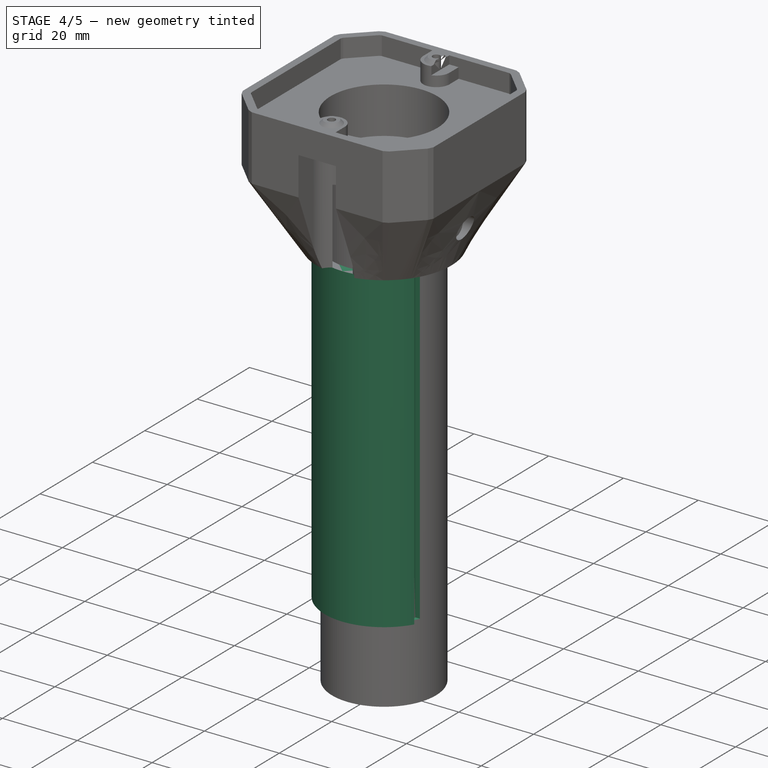
[diagram: stage 4 of 5 — iso view after this stage's code; geometry added in this stage tinted green]
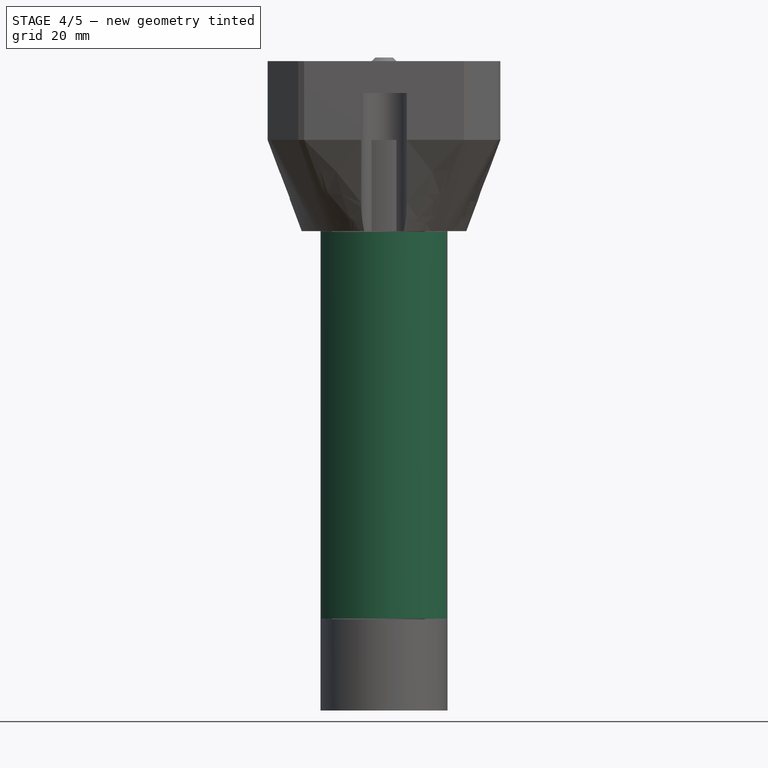
[diagram: stage 4 of 5 — front view after this stage's code; geometry added in this stage tinted green]
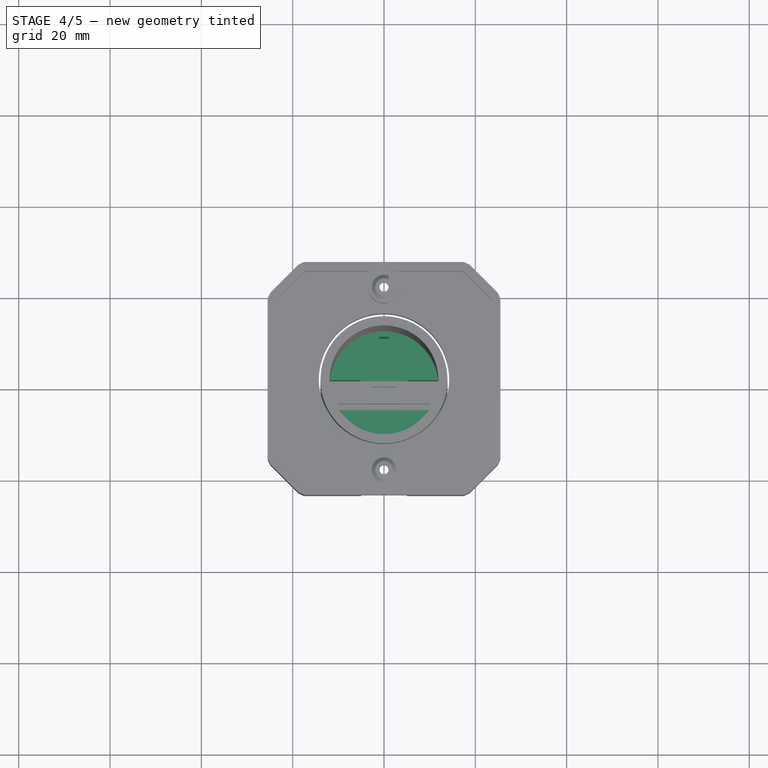
[diagram: stage 4 of 5 — top view after this stage's code; geometry added in this stage tinted green]
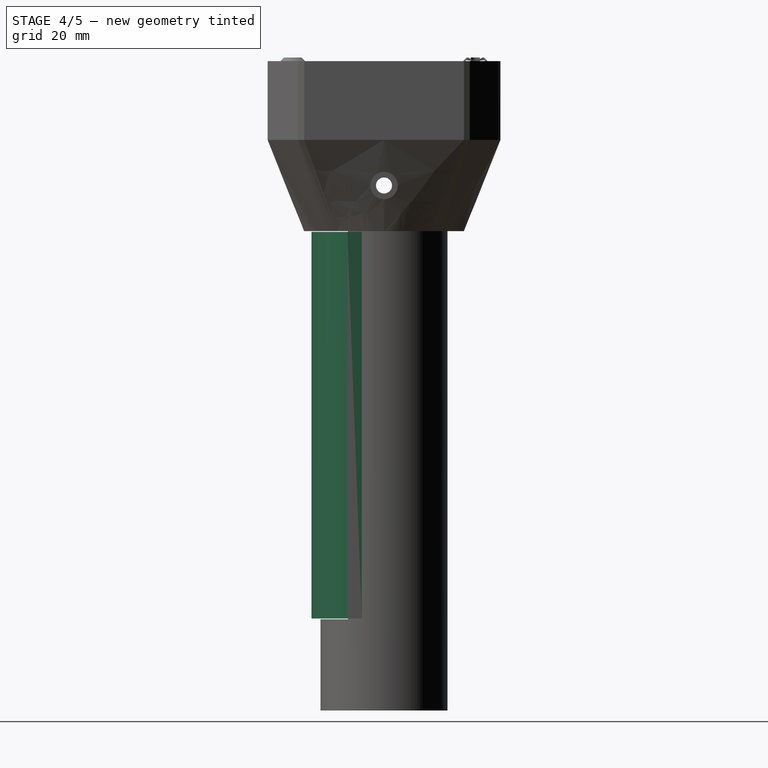
[diagram: stage 4 of 5 — right view after this stage's code; geometry added in this stage tinted green]
FEATURE [Sketcher::SketchObject] Sketch
  FullyConstrained = true
  MapMode = 5
  Support = -> [XY_Plane]
  sketch-geometry (12):
    g0: Circle CenterX=0 CenterY=0 CenterZ=0 NormalX=0 NormalY=0 NormalZ=1 AngleXU=0 Radius=15.875
    g1: LineSegment StartX=-13.6973 StartY=-8.025 StartZ=0 EndX=-11.7713 EndY=-8.025 EndZ=0
    g2: LineSegment StartX=-11.7713 StartY=-8.025 StartZ=0 EndX=-11.7713 EndY=-4.875 EndZ=0
    g3: LineSegment StartX=-11.7713 StartY=-4.875 StartZ=0 EndX=-10.0583 EndY=-4.875 EndZ=0
    g4: LineSegment StartX=-10.0583 StartY=-4.875 StartZ=0 EndX=-10.0583 EndY=-6.375 EndZ=0
    g5: LineSegment StartX=-10.0583 StartY=-6.375 StartZ=0 EndX=10.0583 EndY=-6.375 EndZ=0
    g6: LineSegment StartX=10.0583 StartY=-6.375 StartZ=0 EndX=10.0583 EndY=-4.875 EndZ=0
    g7: LineSegment StartX=10.0583 StartY=-4.875 StartZ=0 EndX=11.7713 EndY=-4.875 EndZ=0
    g8: LineSegment StartX=11.7713 StartY=-4.875 StartZ=0 EndX=11.7713 EndY=-8.025 EndZ=0
    g9: LineSegment StartX=11.7713 StartY=-8.025 StartZ=0 EndX=13.6973 EndY=-8.025 EndZ=0
    g10: LineSegment StartX=0 StartY=0 StartZ=0 EndX=0 EndY=-6.375 EndZ=0
    g11: ArcOfCircle CenterX=-6e-16 CenterY=8e-16 CenterZ=0 NormalX=0 NormalY=0 NormalZ=1 AngleXU=0 Radius=15.875 StartAngle=3.67157 EndAngle=5.75321
  constraints (33):
    c: Coincident(g0,g-1)
    c: Diameter(g0) = 31.75
    c: PointOnObject(g1,g0)
    c: Coincident(g2,g1)
    c: Vertical(g2)
    c: Coincident(g3,g2)
    c: Coincident(g4,g3)
    c: Coincident(g5,g4)
    c: Coincident(g6,g5)
    c: Coincident(g7,g6)
    c: Coincident(g8,g7)
    c: Coincident(g9,g8)
    c: PointOnObject(g9,g0)
    c: Parallel(g2,g4)
    c: Parallel(g6,g8)
    c: Parallel(g1,g3)
    c: Parallel(g3,g5)
    c: Parallel(g5,g7)
    c: Parallel(g7,g9)
    c: Symmetric(g5,g4,g-2)
    c: Symmetric(g1,g8,g-2)
    c: Symmetric(g3,g6,g-2)
    c: DistanceX(g3,g3) = 1.713
    c: DistanceX(g1,g1) = 1.926
    c: DistanceY(g4,g4) = 1.5
    c: DistanceY(g2,g2) = 3.15
    c: Coincident(g10,g0)
    c: PointOnObject(g10,g5)
    c: Vertical(g10)
    c: DistanceY(g10,g10) = 6.375
    c: Coincident(g11,g1)
    c: Coincident(g11,g9)
    c: Tangent(g11,g0)
FEATURE [PartDesign::Pad] Pad
  Direction = (0,0,-1)
  Length = 84.7
  Length2 = 10
  Profile = -> Sketch
  ReferenceAxis = -> Sketch [N_Axis]
  Type = 0
  UseCustomVector = true
  expr: .Direction.z = -1
FEATURE [Sketcher::SketchObject] Sketch009
  ExternalGeometry = -> [Pocket007]
  FullyConstrained = true
  MapMode = 5
  Placement = pos=(2.17e-14,-1.7e-14,-77.487) rot=(0,0,1;0rad)
  Support = -> [Pocket007]
  sketch-geometry (5):
    g0: LineSegment StartX=-2.75 StartY=-1.1875 StartZ=0 EndX=-2.75 EndY=-3.6875 EndZ=0
    g1: LineSegment StartX=-2.75 StartY=-3.6875 StartZ=0 EndX=2.75 EndY=-3.6875 EndZ=0
    g2: LineSegment StartX=2.75 StartY=-3.6875 StartZ=0 EndX=2.75 EndY=-1.1875 EndZ=0
    g3: LineSegment StartX=2.75 StartY=-1.1875 StartZ=0 EndX=-2.75 EndY=-1.1875 EndZ=0
    g4: GeomPoint X=-5.3e-15 Y=-2.4375 Z=0
  constraints (12):
    c: Coincident(g0,g1)
    c: Coincident(g1,g2)
    c: Coincident(g2,g3)
    c: Coincident(g3,g0)
    c: Horizontal(g1)
    c: Horizontal(g3)
    c: Vertical(g0)
    c: Vertical(g2)
    c: Symmetric(g1,g0,g4)
    c: DistanceX(g3,g3) = 5.5
    c: DistanceY(g0,g0) = 2.5
    c: Symmetric(g-3,g-4,g4)
FEATURE [PartDesign::Pocket] Pocket008
  BaseFeature = -> Pocket007
  Direction = (3e-16,-2e-16,-1)
  Length = 6.3565
  Length2 = 5
  Profile = -> Sketch009
  ReferenceAxis = -> Sketch009 [N_Axis]
  Type = 0
FEATURE [Sketcher::SketchObject] Sketch010
  ExternalGeometry = -> [Pocket008]
  FullyConstrained = true
  MapMode = 5
  Placement = pos=(-1.1e-15,-4.875,1.1e-15) rot=(1,0,0;1.5708rad)
  Support = -> [Pocket008]
  sketch-geometry (2):
    g0: Circle CenterX=8e-16 CenterY=-3.6065 CenterZ=0 NormalX=0 NormalY=0 NormalZ=1 AngleXU=0 Radius=1.75
    g1: Circle CenterX=1.8e-14 CenterY=-81.0935 CenterZ=0 NormalX=0 NormalY=0 NormalZ=1 AngleXU=0 Radius=1.75
  constraints (4):
    c: Diameter(g1) = 3.5
    c: Diameter(g0) = 3.5
    c: Symmetric(g-3,g-4,g0)
    c: Symmetric(g-6,g-5,g1)
FEATURE [PartDesign::Pocket] Pocket009
  BaseFeature = -> Pocket008
  Direction = (2e-16,1,-2e-16)
  Length = 0
  Length2 = 5
  Profile = -> Sketch010
  ReferenceAxis = -> Sketch010 [N_Axis]
  Type = 3
  UpToFace = -> Pocket008 [Face23]
FEATURE [Sketcher::SketchObject] Sketch011
  ExternalGeometry = -> [Pocket009]
  FullyConstrained = true
  MapMode = 5
  Placement = pos=(2.17e-14,-1.7e-14,-77.487) rot=(0,0,1;0rad)
  Support = -> [Pocket009]
  sketch-geometry (2):
    g0: LineSegment StartX=-11.8415 StartY=1.179 StartZ=0 EndX=11.8415 EndY=1.179 EndZ=0
    g1: ArcOfCircle CenterX=-5.671e-13 CenterY=0 CenterZ=0 NormalX=0 NormalY=0 NormalZ=1 AngleXU=0 Radius=11.9 StartAngle=0.0992384 EndAngle=3.04235
  constraints (7):
    c: PointOnObject(g0,g-3)
    c: PointOnObject(g0,g-3)
    c: Horizontal(g0)
    c: DistanceY(g-3,g0) = 1.179
    c: Coincident(g1,g0)
    c: Coincident(g1,g0)
    c: Tangent(g1,g-3)
FEATURE [PartDesign::Pad] Pad004
  BaseFeature = -> Pocket009
  Direction = (-3e-16,2e-16,1)
  Length = 24.5
  Length2 = 10
  Profile = -> Sketch011
  ReferenceAxis = -> Sketch011 [N_Axis]
  Type = 0
FEATURE [Sketcher::SketchObject] Sketch012
  ExternalGeometry = -> [Pad004]
  FullyConstrained = true
  MapMode = 5
  Placement = pos=(0,1.179,-3e-16) rot=(1,0,0;1.5708rad)
  Support = -> [Pad004]
  sketch-geometry (5):
    g0: LineSegment StartX=-5.25 StartY=-53.737 StartZ=0 EndX=-5.25 EndY=-76.737 EndZ=0
    g1: LineSegment StartX=-5.25 StartY=-76.737 StartZ=0 EndX=5.25 EndY=-76.737 EndZ=0
    g2: LineSegment StartX=5.25 StartY=-76.737 StartZ=0 EndX=5.25 EndY=-53.737 EndZ=0
    g3: LineSegment StartX=5.25 StartY=-53.737 StartZ=0 EndX=-5.25 EndY=-53.737 EndZ=0
    g4: GeomPoint X=0 Y=-65.237 Z=0
  constraints (13):
    c: Coincident(g0,g1)
    c: Coincident(g1,g2)
    c: Coincident(g2,g3)
    c: Coincident(g3,g0)
    c: Horizontal(g1)
    c: Horizontal(g3)
    c: Vertical(g0)
    c: Vertical(g2)
    c: Symmetric(g1,g0,g4)
    c: PointOnObject(g4,g-2)
    c: DistanceX(g3,g3) = 10.5
    c: DistanceY(g2,g2) = 23
    c: Distance(g0,g-3) = 0.75
FEATURE [PartDesign::Pocket] Pocket010
  BaseFeature = -> Pad004
  Direction = (0,1,-2e-16)
  Length = 9.5
  Length2 = 5
  Profile = -> Sketch012
  ReferenceAxis = -> Sketch012 [N_Axis]
  Type = 0
FEATURE [Sketcher::SketchObject] Sketch013
  ExternalGeometry = -> [Pocket010]
  FullyConstrained = true
  MapMode = 5
  Placement = pos=(0,0,-52.987) rot=(0,0,1;0rad)
  Support = -> [Pocket010]
  sketch-geometry (7):
    g0: Circle CenterX=0 CenterY=1.179 CenterZ=0 NormalX=0 NormalY=0 NormalZ=1 AngleXU=0 Radius=3.75
    g1: Circle CenterX=0 CenterY=9.32529 CenterZ=0 NormalX=0 NormalY=0 NormalZ=1 AngleXU=0 Radius=1.35401
    g2: LineSegment StartX=-5.25 StartY=10.6793 StartZ=0 EndX=5.25 EndY=10.6793 EndZ=0
    g3: LineSegment StartX=-3.58413 StartY=2.28195 StartZ=0 EndX=-1 EndY=10.6793 EndZ=0
    g4: LineSegment StartX=3.58413 StartY=2.28195 StartZ=0 EndX=1 EndY=10.6793 EndZ=0
    g5: ArcOfCircle CenterX=1e-16 CenterY=1.179 CenterZ=0 NormalX=0 NormalY=0 NormalZ=1 AngleXU=0 Radius=3.75 StartAngle=2.84306 EndAngle=6.58172
    g6: LineSegment StartX=-1 StartY=10.6793 StartZ=0 EndX=1 EndY=10.6793 EndZ=0
  constraints (22):
    c: PointOnObject(g0,g-2)
    c: PointOnObject(g0,g-3)
    c: Diameter(g0) = 7.5
    c: PointOnObject(g1,g-2)
    c: PointOnObject(g2,g-4)
    c: Horizontal(g2)
    c: PointOnObject(g2,g-4)
    c: DistanceX(g2,g2) = 10.5
    c: Tangent(g1,g2)
    c: PointOnObject(g3,g0)
    c: PointOnObject(g3,g2)
    c: Tangent(g3,g0)
    c: PointOnObject(g4,g2)
    c: Tangent(g4,g1)
    c: Tangent(g3,g1)
    c: DistanceX(g3,g4) = 2
    c: Tangent(g4,g0) = -1.5708
    c: Coincident(g5,g3)
    c: Coincident(g5,g4)
    c: Tangent(g5,g0)
    c: Coincident(g6,g3)
    c: Coincident(g6,g4)
FEATURE [PartDesign::Pocket] Pocket011
  BaseFeature = -> Pocket010
  Direction = (0,0,-1)
  Length = 0
  Length2 = 5
  Profile = -> Sketch013
  ReferenceAxis = -> Sketch013 [N_Axis]
  Type = 3
  UpToFace = -> Pocket010 [Face40]
FEATURE [Sketcher::SketchObject] Sketch014
  ExternalGeometry = -> [Pocket011]
  FullyConstrained = true
  MapMode = 5
  Placement = pos=(0,0,0) rot=(0.57735,0.57735,0.57735;2.0944rad)
  Support = -> [YZ_Plane001]
  sketch-geometry (4):
    g0: LineSegment StartX=-4.875 StartY=0 StartZ=0 EndX=-9.875 EndY=0 EndZ=0
    g1: LineSegment StartX=-9.875 StartY=0 StartZ=0 EndX=-9.875 EndY=-84.7 EndZ=0
    g2: LineSegment StartX=-9.875 StartY=-84.7 StartZ=0 EndX=-4.875 EndY=-84.7 EndZ=0
    g3: LineSegment StartX=-4.875 StartY=-84.7 StartZ=0 EndX=-4.875 EndY=0 EndZ=0
  constraints (10):
    c: Coincident(g0,g-3)
    c: PointOnObject(g0,g-1)
    c: Coincident(g1,g0)
    c: Vertical(g1)
    c: Coincident(g2,g1)
    c: Coincident(g2,g-4)
    c: Coincident(g3,g2)
    c: Coincident(g3,g0)
    c: Horizontal(g2)
    c: DistanceX(g0,g0) = 5
FEATURE [PartDesign::Pocket] Pocket012
  BaseFeature = -> Pocket011
  Direction = (-1,2e-16,-3e-16)
  Length = 5
  Length2 = 5
  Midplane = true
  Profile = -> Sketch014
  ReferenceAxis = -> Sketch014 [N_Axis]
  Type = 1
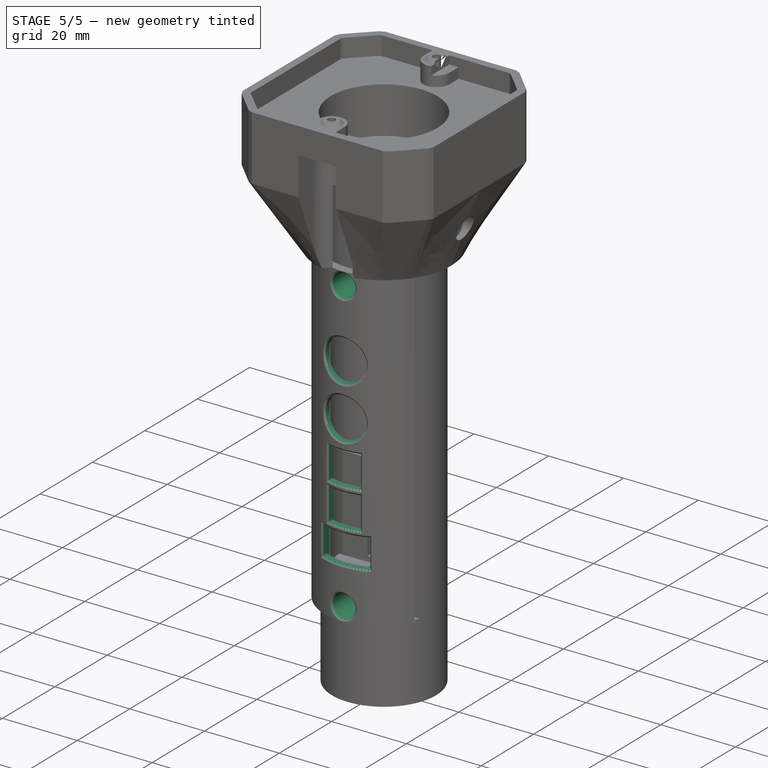
[diagram: stage 5 of 5 — iso view after this stage's code; geometry added in this stage tinted green]
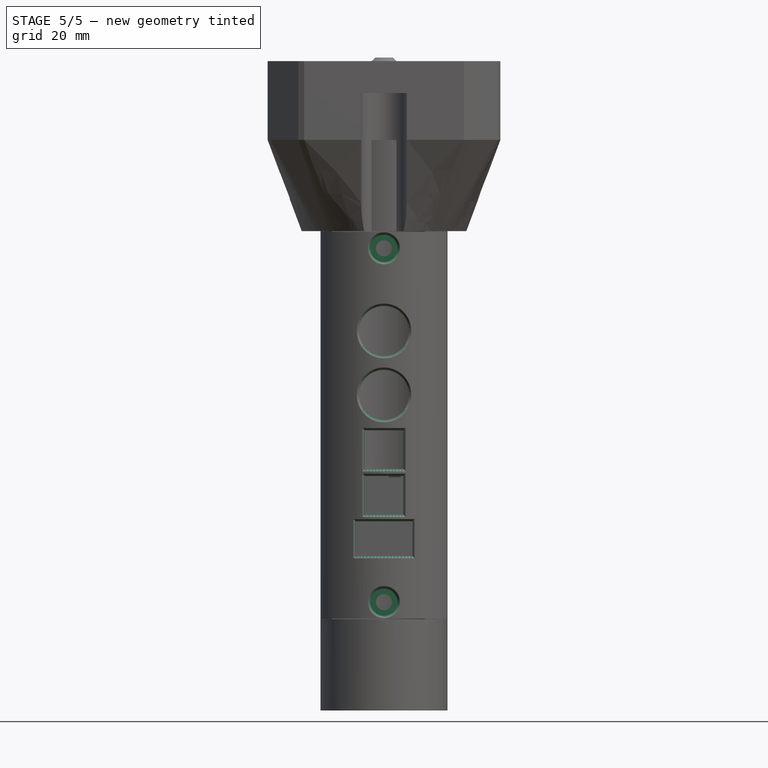
[diagram: stage 5 of 5 — front view after this stage's code; geometry added in this stage tinted green]
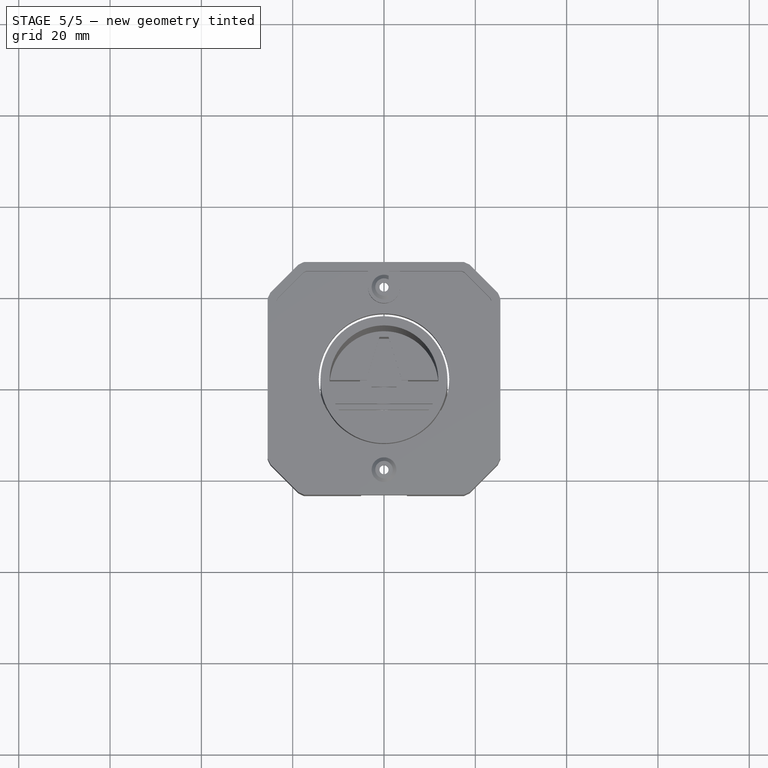
[diagram: stage 5 of 5 — top view after this stage's code; geometry added in this stage tinted green]
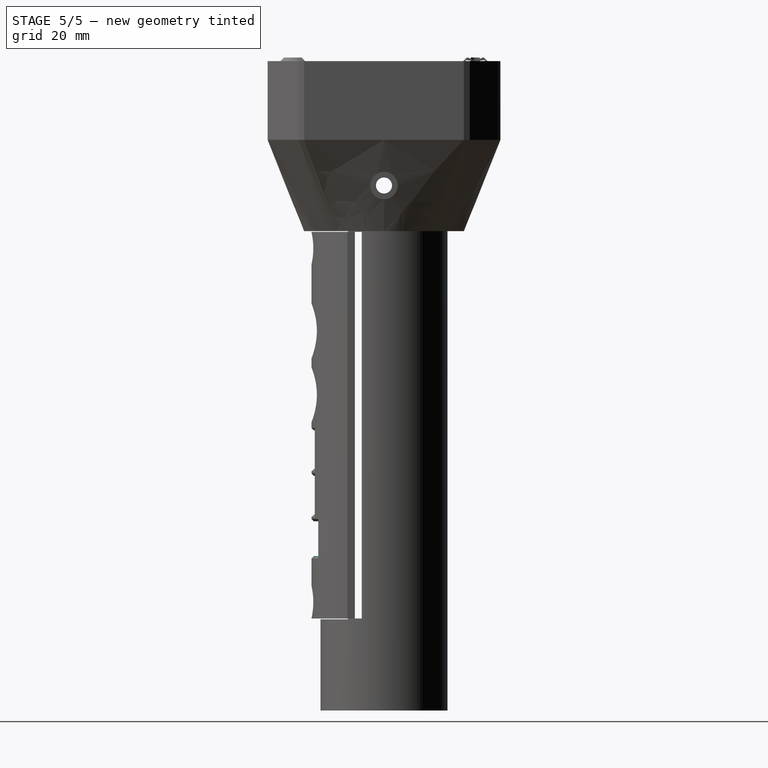
[diagram: stage 5 of 5 — right view after this stage's code; geometry added in this stage tinted green]
FEATURE [Sketcher::SketchObject] Sketch001
  ExternalGeometry = -> [Pad]
  FullyConstrained = true
  MapMode = 5
  Placement = pos=(0,-6.375,0) rot=(0,0.707107,0.707107;3.14159rad)
  Support = -> [Pad]
  sketch-geometry (2):
    g0: Circle CenterX=0 CenterY=-3.607 CenterZ=0 NormalX=0 NormalY=0 NormalZ=1 AngleXU=0 Radius=1.75
    g1: Circle CenterX=0 CenterY=-81.093 CenterZ=0 NormalX=0 NormalY=0 NormalZ=1 AngleXU=0 Radius=1.75
  constraints (6):
    c: PointOnObject(g0,g-2)
    c: Diameter(g0) = 3.5
    c: PointOnObject(g1,g-2)
    c: Equal(g0,g1)
    c: DistanceY(g0,g-1) = 3.607
    c: Distance(g1,g-3) = 3.607
FEATURE [PartDesign::Pocket] Pocket
  BaseFeature = -> Pad
  Direction = (0,-1,2e-16)
  Length = 5
  Length2 = 5
  Profile = -> Sketch001
  ReferenceAxis = -> Sketch001 [N_Axis]
  Type = 1
FEATURE [Sketcher::SketchObject] Sketch002
  AttachmentOffset = pos=(0,0,-1) rot=(0,0,1;0rad)
  ExternalGeometry = -> [Pocket]
  FullyConstrained = true
  MapMode = 5
  Placement = pos=(0,-7.375,2e-16) rot=(0,0.707107,0.707107;3.14159rad)
  Support = -> [Pocket]
  expr: .AttachmentOffset.Base.z = -1 mm
  sketch-geometry (2):
    g0: Circle CenterX=0 CenterY=-81.093 CenterZ=0 NormalX=0 NormalY=0 NormalZ=1 AngleXU=0 Radius=3
    g1: Circle CenterX=0 CenterY=-3.607 CenterZ=0 NormalX=0 NormalY=0 NormalZ=1 AngleXU=0 Radius=3
  constraints (4):
    c: Coincident(g1,g-3)
    c: Diameter(g1) = 6
    c: Equal(g0,g1)
    c: Coincident(g-4,g0)
FEATURE [PartDesign::Pocket] Pocket001
  BaseFeature = -> Pocket
  Direction = (0,-1,2e-16)
  Length = 5
  Length2 = 5
  Profile = -> Sketch002
  ReferenceAxis = -> Sketch002 [N_Axis]
  Type = 1
FEATURE [Sketcher::SketchObject] Sketch003
  ExternalGeometry = -> [Pocket001]
  FullyConstrained = true
  MapMode = 5
  Placement = pos=(0,-6.375,0) rot=(0,0.707107,0.707107;3.14159rad)
  Support = -> [Pocket001]
  sketch-geometry (20):
    g0: LineSegment StartX=-4.25 StartY=-53.45 StartZ=0 EndX=-4.25 EndY=-61.95 EndZ=0
    g1: LineSegment StartX=-4.25 StartY=-61.95 StartZ=0 EndX=4.25 EndY=-61.95 EndZ=0
    g2: LineSegment StartX=4.25 StartY=-61.95 StartZ=0 EndX=4.25 EndY=-53.45 EndZ=0
    g3: LineSegment StartX=4.25 StartY=-53.45 StartZ=0 EndX=-4.25 EndY=-53.45 EndZ=0
    g4: GeomPoint X=0 Y=-57.7 Z=0
    g5: LineSegment StartX=-4.25 StartY=-43.45 StartZ=0 EndX=-4.25 EndY=-51.95 EndZ=0
    g6: LineSegment StartX=-4.25 StartY=-51.95 StartZ=0 EndX=4.25 EndY=-51.95 EndZ=0
    g7: LineSegment StartX=4.25 StartY=-51.95 StartZ=0 EndX=4.25 EndY=-43.45 EndZ=0
    g8: LineSegment StartX=4.25 StartY=-43.45 StartZ=0 EndX=-4.25 EndY=-43.45 EndZ=0
    g9: GeomPoint X=0 Y=-47.7 Z=0
    g10: LineSegment StartX=-6.25 StartY=-63.4 StartZ=0 EndX=-6.25 EndY=-71 EndZ=0
    g11: LineSegment StartX=-6.25 StartY=-71 StartZ=0 EndX=6.25 EndY=-71 EndZ=0
    g12: LineSegment StartX=6.25 StartY=-71 StartZ=0 EndX=6.25 EndY=-63.4 EndZ=0
    g13: LineSegment StartX=6.25 StartY=-63.4 StartZ=0 EndX=-6.25 EndY=-63.4 EndZ=0
    g14: GeomPoint X=0 Y=-67.2 Z=0
    g15: Circle CenterX=0 CenterY=-21.7 CenterZ=0 NormalX=0 NormalY=0 NormalZ=1 AngleXU=0 Radius=5.5
    g16: Circle CenterX=0 CenterY=-35.7 CenterZ=0 NormalX=0 NormalY=0 NormalZ=1 AngleXU=0 Radius=5.5
    g17: LineSegment StartX=-4.25 StartY=-53.45 StartZ=0 EndX=4.25 EndY=-61.95 EndZ=0
    g18: LineSegment StartX=-4.25 StartY=-43.45 StartZ=0 EndX=4.25 EndY=-51.95 EndZ=0
    g19: LineSegment StartX=-6.25 StartY=-63.4 StartZ=0 EndX=6.25 EndY=-71 EndZ=0
  constraints (51):
    c: Coincident(g0,g1)
    c: Coincident(g1,g2)
    c: Coincident(g2,g3)
    c: Coincident(g3,g0)
    c: Horizontal(g1)
    c: Horizontal(g3)
    c: Vertical(g0)
    c: Vertical(g2)
    c: Symmetric(g1,g0,g4)
    c: PointOnObject(g4,g-2)
    c: Coincident(g5,g6)
    c: Coincident(g6,g7)
    c: Coincident(g7,g8)
    c: Coincident(g8,g5)
    c: Horizontal(g6)
    c: Horizontal(g8)
    c: Vertical(g5)
    c: Vertical(g7)
    c: Symmetric(g6,g5,g9)
    c: PointOnObject(g9,g-2)
    c: Coincident(g10,g11)
    c: Coincident(g11,g12)
    c: Coincident(g12,g13)
    c: Coincident(g13,g10)
    c: Horizontal(g11)
    c: Horizontal(g13)
    c: Vertical(g10)
    c: Vertical(g12)
    c: Symmetric(g11,g10,g14)
    c: PointOnObject(g14,g-2)
    c: PointOnObject(g15,g-2)
    c: PointOnObject(g16,g-2)
    c: DistanceX(g3,g3) = 8.5
    c: DistanceY(g2,g2) = 8.5
    c: DistanceX(g8,g8) = 8.5
    c: DistanceY(g7,g7) = 8.5
    c: Coincident(g17,g0)
    c: Coincident(g17,g1)
    c: Coincident(g18,g5)
    c: Coincident(g18,g6)
    c: Distance(g4,g-3) = 27
    c: Distance(g9,g-3) = 37
    c: DistanceX(g13,g13) = 12.5
    c: DistanceY(g12,g12) = 7.6
    c: Coincident(g19,g10)
    c: Coincident(g19,g11)
    c: Distance(g14,g-3) = 17.5
    c: Diameter(g16) = 11
    c: Diameter(g15) = 11
    c: Distance(g16,g-3) = 49
    c: Distance(g15,g-3) = 63
FEATURE [PartDesign::Pocket] Pocket002
  BaseFeature = -> Pocket001
  Direction = (0,-1,2e-16)
  Length = 5
  Length2 = 5
  Profile = -> Sketch003
  ReferenceAxis = -> Sketch003 [N_Axis]
  Type = 1
FEATURE [Sketcher::SketchObject] Sketch004
  AttachmentOffset = pos=(0,0,-7) rot=(0,0,1;0rad)
  ExternalGeometry = -> [Pocket002]
  FullyConstrained = true
  MapMode = 5
  Placement = pos=(0,0,-7) rot=(0,0,1;0rad)
  Support = -> [Pocket002]
  expr: Constraints[1] = 31.75 - 2 * 1.588
  sketch-geometry (5):
    g0: Circle CenterX=-6e-16 CenterY=8e-16 CenterZ=0 NormalX=0 NormalY=0 NormalZ=1 AngleXU=0 Radius=14.287
    g1: LineSegment StartX=-10.0583 StartY=-6.375 StartZ=0 EndX=-10.0583 EndY=-10.1464 EndZ=0
    g2: LineSegment StartX=10.0583 StartY=-6.375 StartZ=0 EndX=10.0583 EndY=-10.1464 EndZ=0
    g3: LineSegment StartX=-10.0583 StartY=-6.375 StartZ=0 EndX=10.0583 EndY=-6.375 EndZ=0
    g4: ArcOfCircle CenterX=-1.1e-15 CenterY=0 CenterZ=0 NormalX=0 NormalY=0 NormalZ=1 AngleXU=0 Radius=14.287 StartAngle=3.93135 EndAngle=5.49342
  constraints (13):
    c: Coincident(g0,g-3)
    c: Diameter(g0) = 28.574
    c: Coincident(g1,g-6)
    c: PointOnObject(g1,g0)
    c: Coincident(g2,g-5)
    c: PointOnObject(g2,g0)
    c: Vertical(g1)
    c: Vertical(g2)
    c: Coincident(g3,g1)
    c: Coincident(g3,g2)
    c: Coincident(g4,g1)
    c: Coincident(g4,g2)
    c: Tangent(g4,g0)
FEATURE [PartDesign::Pocket] Pocket003
  BaseFeature = -> Pocket002
  Direction = (0,0,-1)
  Length = 70.274
  Length2 = 5
  Profile = -> Sketch004
  ReferenceAxis = -> Sketch004 [N_Axis]
  Type = 0
FEATURE [PartDesign::Pocket] Pocket004
  BaseFeature = -> Pocket003
  Direction = (0,-1,0)
  Length = 0
  Length2 = 5
  Profile = -> Pocket003 [Face27]
  Type = 3
  UpToFace = -> Pocket003 [Face25]
FEATURE [PartDesign::Pocket] Pocket005
  BaseFeature = -> Pocket004
  Direction = (0,-1,0)
  Length = 0
  Length2 = 5
  Profile = -> Pocket004 [Face23]
  Type = 3
  UpToFace = -> Pocket004 [Face25]
FEATURE [PartDesign::Chamfer] Chamfer
  Angle = 45
  Base = -> Pocket005 [Edge23,Edge22,Edge21,Edge17,Edge16,Edge18,Edge19,Edge13,Edge12,Edge15,Edge14,Edge9,Edge8,Edge11,Edge10,Edge20]
  BaseFeature = -> Pocket005
  ChamferType = 0
  FlipDirection = false
  Size = 0.5
  Size2 = 1
  SupportTransform = false
  UseAllEdges = false
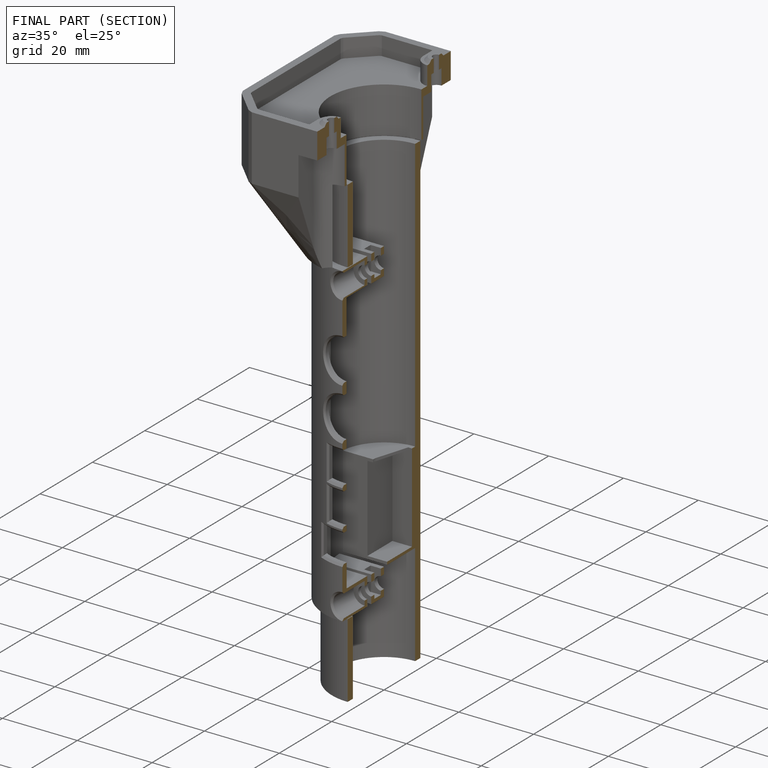
[diagram: finished part — half-section view (interior)]
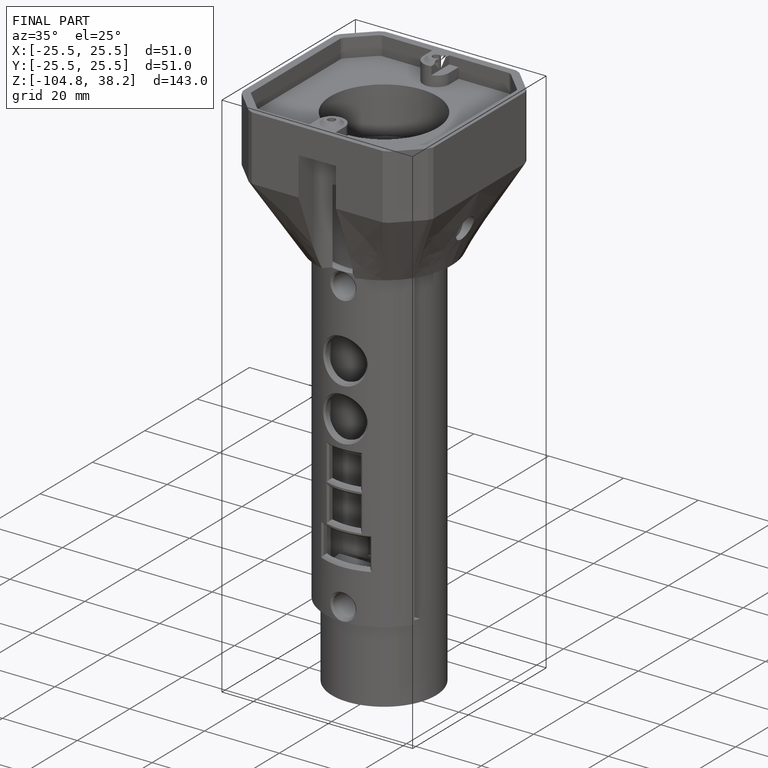
[diagram: finished part — iso view with bounding-box wireframe]
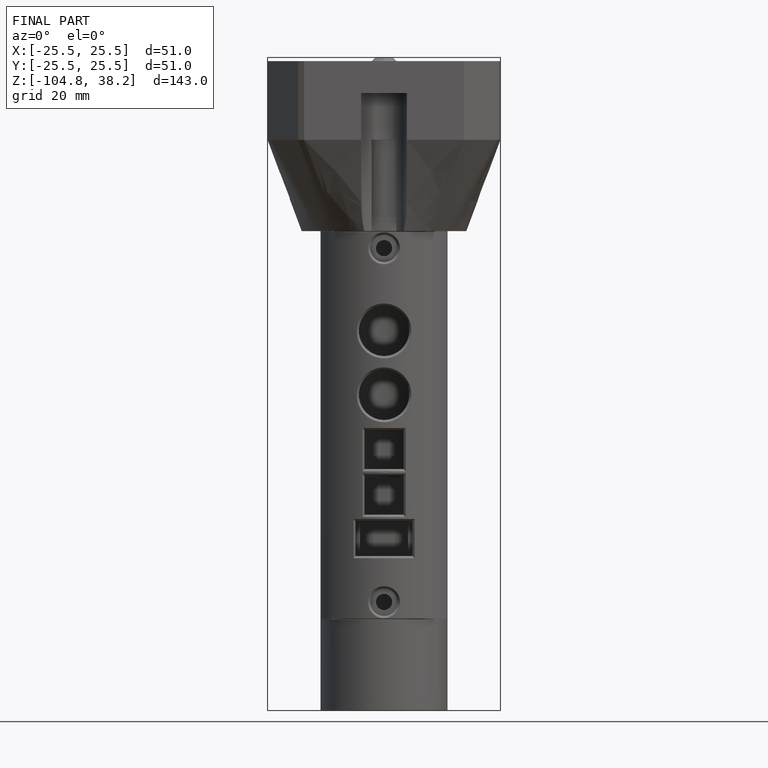
[diagram: finished part — front view with bounding-box wireframe]
